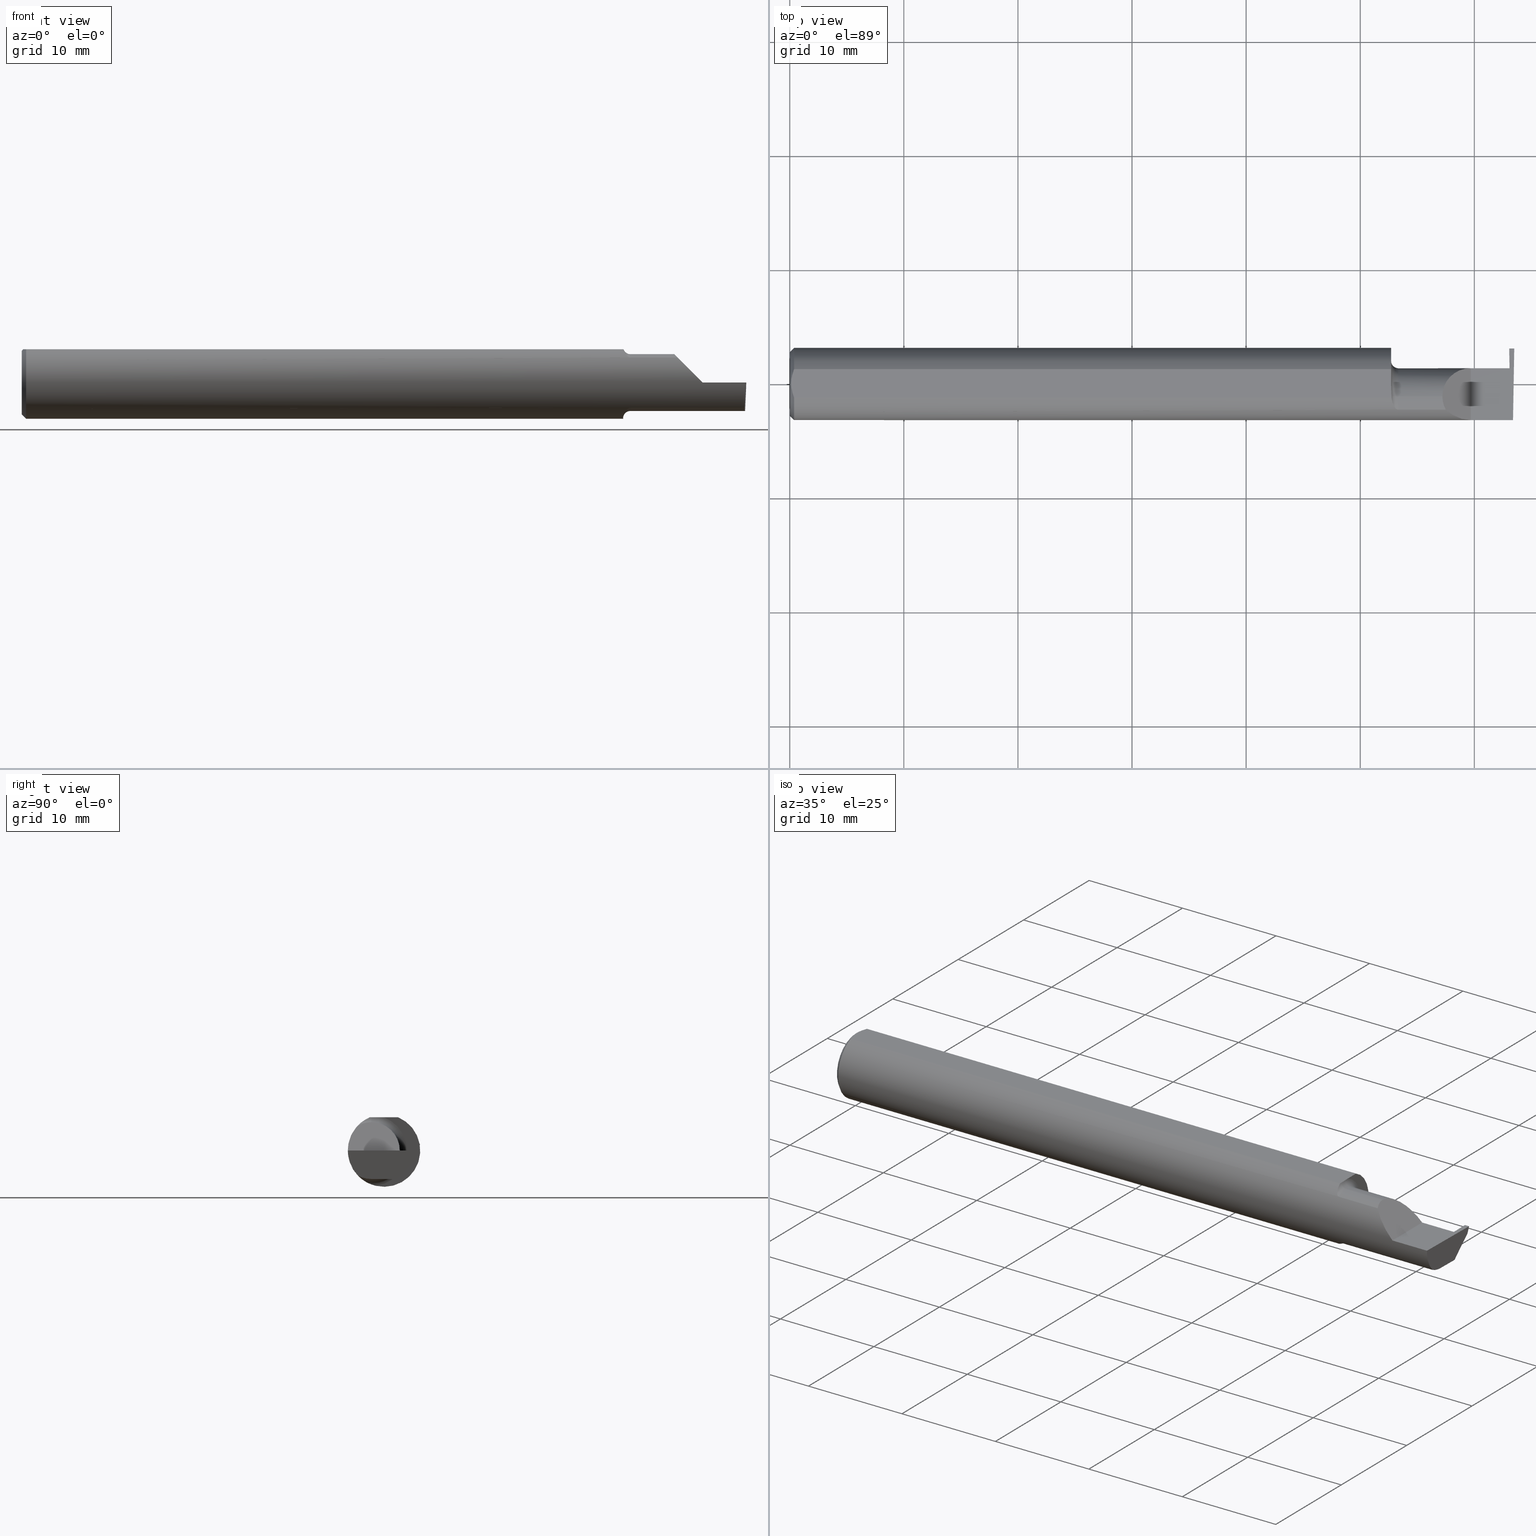
[diagram: canonical four-view strip — front | top / right | iso, engineering-drawing reading convention]
A machine part, canonical four-view strip (front | top / right | iso — engineering-drawing reading convention). The complete STEP part file that produces these views, byte-faithful:
ISO-10303-21;
HEADER;
FILE_DESCRIPTION (( 'STEP AP203' ),
    '1' );
FILE_NAME ('220791-GT017Q-6.STEP',
    '2024-07-08T18:41:14',
    ( '' ),
    ( '' ),
    'SwSTEP 2.0',
    'SolidWorks 2024',
    '' );
FILE_SCHEMA (( 'CONFIG_CONTROL_DESIGN' ));
ENDSEC;

DATA;
#1 = CARTESIAN_POINT ( 'NONE',  ( 2.097502509400849480, -0.09015216647698104380, 0.08637192471808591288 ) ) ;
#2 = DIRECTION ( 'NONE',  ( -1.000000000000000000, -0.000000000000000000, -0.000000000000000000 ) ) ;
#3 = AXIS2_PLACEMENT_3D ( 'NONE', #120, #241, #298 ) ;
#4 = VECTOR ( 'NONE', #729, 39.37007874015748143 ) ;
#5 = DIRECTION ( 'NONE',  ( 0.000000000000000000, 0.000000000000000000, 1.000000000000000000 ) ) ;
#6 = EDGE_CURVE ( 'NONE', #556, #52, #243, .T. ) ;
#7 = ORIENTED_EDGE ( 'NONE', *, *, #367, .F. ) ;
#8 = LINE ( 'NONE', #558, #620 ) ;
#9 = ORIENTED_EDGE ( 'NONE', *, *, #392, .T. ) ;
#10 = PERSON_AND_ORGANIZATION ( #627, #482 ) ;
#11 = PLANE ( 'NONE',  #733 ) ;
#12 = VERTEX_POINT ( 'NONE', #551 ) ;
#13 = AXIS2_PLACEMENT_3D ( 'NONE', #504, #312, #618 ) ;
#14 = AXIS2_PLACEMENT_3D ( 'NONE', #121, #613, #617 ) ;
#15 = ORIENTED_EDGE ( 'NONE', *, *, #367, .T. ) ;
#16 = COORDINATED_UNIVERSAL_TIME_OFFSET ( 8, 0, .BEHIND. ) ;
#17 = CARTESIAN_POINT ( 'NONE',  ( 2.076326891871132840, -0.04895916665958125608, 0.1148500000000000076 ) ) ;
#18 = CARTESIAN_POINT ( 'NONE',  ( 2.350000000000000089, -0.2000000000000000111, 1.836970198721028825E-17 ) ) ;
#19 = EDGE_CURVE ( 'NONE', #581, #321, #493, .T. ) ;
#20 = ORIENTED_EDGE ( 'NONE', *, *, #435, .T. ) ;
#21 = CYLINDRICAL_SURFACE ( 'NONE', #782, 0.09800000000000000377 ) ;
#22 = FACE_OUTER_BOUND ( 'NONE', #217, .T. ) ;
#23 = PRODUCT ( '220791-GT017Q-6', '220791-GT017Q-6', '', ( #265 ) ) ;
#24 = ORIENTED_EDGE ( 'NONE', *, *, #6, .T. ) ;
#25 = EDGE_CURVE ( 'NONE', #49, #350, #430, .T. ) ;
#26 = PERSON_AND_ORGANIZATION ( #627, #482 ) ;
#27 = DIRECTION ( 'NONE',  ( -7.219510806010324627E-16, 0.9999998142845092364, 0.0006094513490878469570 ) ) ;
#28 = DIRECTION ( 'NONE',  ( 0.000000000000000000, 0.000000000000000000, 1.000000000000000000 ) ) ;
#29 = ORIENTED_EDGE ( 'NONE', *, *, #680, .F. ) ;
#30 = CARTESIAN_POINT ( 'NONE',  ( 2.083278800716858115, -0.07573621487658314944, -0.09938639293507189887 ) ) ;
#31 = EDGE_CURVE ( 'NONE', #719, #184, #723, .T. ) ;
#32 = CC_DESIGN_PERSON_AND_ORGANIZATION_ASSIGNMENT ( #451, #82, ( #711 ) ) ;
#33 = ORIENTED_EDGE ( 'NONE', *, *, #268, .T. ) ;
#34 = CARTESIAN_POINT ( 'NONE',  ( 2.075000000000000178, 0.1541499999999999815, 0.000000000000000000 ) ) ;
#35 = CARTESIAN_POINT ( 'NONE',  ( 2.482499999999999929, 0.05414999123725500879, -4.144270477499314721E-05 ) ) ;
#36 = ORIENTED_EDGE ( 'NONE', *, *, #309, .T. ) ;
#37 = CARTESIAN_POINT ( 'NONE',  ( 2.100000000000000089, -0.04385000000000001397, 0.000000000000000000 ) ) ;
#38 = LINE ( 'NONE', #541, #66 ) ;
#39 = ORIENTED_EDGE ( 'NONE', *, *, #786, .T. ) ;
#40 = AXIS2_PLACEMENT_3D ( 'NONE', #653, #302, #771 ) ;
#41 =( BOUNDED_CURVE ( )  B_SPLINE_CURVE ( 3, ( #533, #606, #594, #408 ),
 .UNSPECIFIED., .F., .F. ) 
 B_SPLINE_CURVE_WITH_KNOTS ( ( 4, 4 ),
 ( 0.000000000000000000, 1.570796326794896558 ),
 .UNSPECIFIED. ) 
 CURVE ( )  GEOMETRIC_REPRESENTATION_ITEM ( )  RATIONAL_B_SPLINE_CURVE ( ( 1.000000000000000000, 0.8047378541243649375, 0.8047378541243649375, 1.000000000000000000 ) ) 
 REPRESENTATION_ITEM ( '' )  );
#42 = CARTESIAN_POINT ( 'NONE',  ( 0.004999999999999990563, 1.454187663965904829E-17, 0.1148500000000000076 ) ) ;
#43 = AXIS2_PLACEMENT_3D ( 'NONE', #289, #352, #232 ) ;
#44 = DIRECTION ( 'NONE',  ( 0.000000000000000000, 0.000000000000000000, 1.000000000000000000 ) ) ;
#45 = EDGE_CURVE ( 'NONE', #350, #655, #514, .T. ) ;
#46 = ORIENTED_EDGE ( 'NONE', *, *, #80, .F. ) ;
#47 = CARTESIAN_POINT ( 'NONE',  ( 2.350000000000000089, 0.05414999999999988572, 1.836970198721028825E-17 ) ) ;
#48 = CARTESIAN_POINT ( 'NONE',  ( 2.075000000000000178, 0.000000000000000000, 0.000000000000000000 ) ) ;
#49 = VERTEX_POINT ( 'NONE', #333 ) ;
#50 = DIRECTION ( 'NONE',  ( 0.000000000000000000, 0.000000000000000000, 1.000000000000000000 ) ) ;
#51 = CARTESIAN_POINT ( 'NONE',  ( 2.487354867654527624, 0.002850604310161131225, -0.09799999999999998990 ) ) ;
#52 = VERTEX_POINT ( 'NONE', #35 ) ;
#53 = APPLICATION_PROTOCOL_DEFINITION ( 'international standard', 'config_control_design', 1994, #374 ) ;
#54 = AXIS2_PLACEMENT_3D ( 'NONE', #344, #415, #657 ) ;
#55 = CARTESIAN_POINT ( 'NONE',  ( 2.499132853025171297, 0.1117231085775382687, -0.02616302870350971019 ) ) ;
#56 = CIRCLE ( 'NONE', #273, 0.09800000000000001765 ) ;
#57 = CIRCLE ( 'NONE', #595, 0.1248500000000000026 ) ;
#58 = DIRECTION ( 'NONE',  ( -0.03699114979479237175, 0.7066228325057374304, 0.7066228325057348769 ) ) ;
#59 = CARTESIAN_POINT ( 'NONE',  ( 2.287163018370355072, -0.1127002472623169216, 0.06283698162964553025 ) ) ;
#60 = CARTESIAN_POINT ( 'NONE',  ( 2.076365755776839350, -0.03650543323727818007, 0.1148500000000000215 ) ) ;
#61 = ORIENTED_EDGE ( 'NONE', *, *, #68, .F. ) ;
#62 = CARTESIAN_POINT ( 'NONE',  ( 2.252000000000000668, -0.04385000000000001397, 0.09800000000000000377 ) ) ;
#63 = DIRECTION ( 'NONE',  ( -1.000000000000000000, -0.000000000000000000, -0.000000000000000000 ) ) ;
#64 = CARTESIAN_POINT ( 'NONE',  ( 0.01499999999999999944, 1.528971528735470422E-17, 0.1248500000000000026 ) ) ;
#65 = CARTESIAN_POINT ( 'NONE',  ( 2.399999999999999911, 0.1138861372810479888, -0.02400000000000000050 ) ) ;
#66 = VECTOR ( 'NONE', #768, 39.37007874015748143 ) ;
#67 = VECTOR ( 'NONE', #136, 39.37007874015748143 ) ;
#68 = EDGE_CURVE ( 'NONE', #679, #275, #279, .T. ) ;
#69 = APPROVAL_PERSON_ORGANIZATION ( #26, #428, #326 ) ;
#70 = ORIENTED_EDGE ( 'NONE', *, *, #765, .F. ) ;
#71 = CARTESIAN_POINT ( 'NONE',  ( 2.263628075281542529, -0.09015216647662421812, 0.08637192471845822617 ) ) ;
#72 = DIRECTION ( 'NONE',  ( 1.000000000000000000, 0.000000000000000000, 0.000000000000000000 ) ) ;
#73 = ORIENTED_EDGE ( 'NONE', *, *, #735, .F. ) ;
#74 = CALENDAR_DATE ( 2024, 8, 7 ) ;
#75 = CARTESIAN_POINT ( 'NONE',  ( 0.01499999999999999944, 0.000000000000000000, -0.1248500000000000026 ) ) ;
#76 = ORIENTED_EDGE ( 'NONE', *, *, #751, .F. ) ;
#77 = EDGE_LOOP ( 'NONE', ( #465, #70, #757 ) ) ;
#78 = FACE_OUTER_BOUND ( 'NONE', #176, .T. ) ;
#79 = CIRCLE ( 'NONE', #507, 0.02499999999999980016 ) ;
#80 = EDGE_CURVE ( 'NONE', #574, #687, #361, .T. ) ;
#81 = ORIENTED_EDGE ( 'NONE', *, *, #254, .T. ) ;
#82 = PERSON_AND_ORGANIZATION_ROLE ( 'design_supplier' ) ;
#83 = LINE ( 'NONE', #199, #233 ) ;
#84 = DIRECTION ( 'NONE',  ( -1.000000000000000000, -0.000000000000000000, -0.000000000000000000 ) ) ;
#85 = ADVANCED_FACE ( 'NONE', ( #22 ), #764, .F. ) ;
#86 = EDGE_LOOP ( 'NONE', ( #221, #89, #502, #225, #702 ) ) ;
#87 = DIRECTION ( 'NONE',  ( 1.000000000000000000, 0.000000000000000000, 0.000000000000000000 ) ) ;
#88 = DIRECTION ( 'NONE',  ( -0.7071067811865492381, 0.000000000000000000, -0.7071067811865459074 ) ) ;
#89 = ORIENTED_EDGE ( 'NONE', *, *, #392, .F. ) ;
#90 = ADVANCED_FACE ( 'NONE', ( #445 ), #534, .F. ) ;
#91 = CARTESIAN_POINT ( 'NONE',  ( 2.482499999999999929, 0.05414999123725500879, -4.144270477499314721E-05 ) ) ;
#92 = AXIS2_PLACEMENT_3D ( 'NONE', #210, #324, #389 ) ;
#93 = ORIENTED_EDGE ( 'NONE', *, *, #735, .T. ) ;
#94 = FACE_OUTER_BOUND ( 'NONE', #77, .T. ) ;
#95 = LINE ( 'NONE', #696, #285 ) ;
#96 = ORIENTED_EDGE ( 'NONE', *, *, #168, .T. ) ;
#97 = FACE_OUTER_BOUND ( 'NONE', #567, .T. ) ;
#98 = ORIENTED_EDGE ( 'NONE', *, *, #281, .F. ) ;
#99 = CARTESIAN_POINT ( 'NONE',  ( 2.482499999999999929, 0.05414999999999997593, 5.204738710087130603E-17 ) ) ;
#100 = EDGE_CURVE ( 'NONE', #275, #570, #750, .T. ) ;
#101 = DIRECTION ( 'NONE',  ( -0.03084274406794521375, -0.7067703747110382073, -0.7067703747110356538 ) ) ;
#102 = ORIENTED_EDGE ( 'NONE', *, *, #229, .F. ) ;
#103 = AXIS2_PLACEMENT_3D ( 'NONE', #267, #153, #513 ) ;
#104 = CARTESIAN_POINT ( 'NONE',  ( 0.004999999999999962808, 0.008410227287019804779, 0.1148500000000000076 ) ) ;
#105 = AXIS2_PLACEMENT_3D ( 'NONE', #491, #496, #621 ) ;
#106 = DIRECTION ( 'NONE',  ( -1.000000000000000000, -0.000000000000000000, -0.000000000000000000 ) ) ;
#107 = VERTEX_POINT ( 'NONE', #690 ) ;
#108 = DIRECTION ( 'NONE',  ( -1.000000000000000000, -0.000000000000000000, -0.000000000000000000 ) ) ;
#109 = CARTESIAN_POINT ( 'NONE',  ( 2.497382703856816377, 0.1221956850741156286, -0.09996573249755572044 ) ) ;
#110 = EDGE_LOOP ( 'NONE', ( #716, #747, #317, #743 ) ) ;
#111 = CARTESIAN_POINT ( 'NONE',  ( 2.291250000000000231, -0.09015216647662482874, -0.08637192471845768493 ) ) ;
#112 = ADVANCED_FACE ( 'NONE', ( #78 ), #755, .F. ) ;
#113 = CARTESIAN_POINT ( 'NONE',  ( 2.494536841675280670, -0.04385000000000003478, -0.09799999999999998990 ) ) ;
#114 = ADVANCED_FACE ( 'NONE', ( #272 ), #455, .T. ) ;
#115 = CC_DESIGN_PERSON_AND_ORGANIZATION_ASSIGNMENT ( #193, #331, ( #119 ) ) ;
#116 = ORIENTED_EDGE ( 'NONE', *, *, #80, .T. ) ;
#117 = LINE ( 'NONE', #111, #323 ) ;
#118 = CARTESIAN_POINT ( 'NONE',  ( 2.076365755776839794, -0.04385000000000001397, 0.1148500000000000076 ) ) ;
#119 = SECURITY_CLASSIFICATION ( '', '', #318 ) ;
#120 = CARTESIAN_POINT ( 'NONE',  ( 2.482499999999999929, -0.04385000000000001397, 0.000000000000000000 ) ) ;
#121 = CARTESIAN_POINT ( 'NONE',  ( 2.100000000000000089, -0.04385000000000000009, -0.1230000000000000121 ) ) ;
#122 = DIRECTION ( 'NONE',  ( 0.000000000000000000, -1.000000000000000000, 0.000000000000000000 ) ) ;
#123 =( BOUNDED_CURVE ( )  B_SPLINE_CURVE ( 3, ( #480, #164, #290, #347 ),
 .UNSPECIFIED., .F., .T. ) 
 B_SPLINE_CURVE_WITH_KNOTS ( ( 4, 4 ),
 ( 0.09562308769844128642, 0.5877155292609013149 ),
 .UNSPECIFIED. ) 
 CURVE ( )  GEOMETRIC_REPRESENTATION_ITEM ( )  RATIONAL_B_SPLINE_CURVE ( ( 1.000000000000000000, 0.9799220177372778284, 0.9799220177372778284, 1.000000000000000000 ) ) 
 REPRESENTATION_ITEM ( '' )  );
#124 = ORIENTED_EDGE ( 'NONE', *, *, #141, .T. ) ;
#125 =( CONVERSION_BASED_UNIT ( 'INCH', #674 ) LENGTH_UNIT ( ) NAMED_UNIT ( #548 ) );
#126 = DIRECTION ( 'NONE',  ( -1.000000000000000000, -0.000000000000000000, -0.000000000000000000 ) ) ;
#127 = EDGE_CURVE ( 'NONE', #588, #230, #584, .T. ) ;
#128 = CARTESIAN_POINT ( 'NONE',  ( 2.075000000000000178, -0.1248500000000000165, 0.1148500000000000076 ) ) ;
#129 = DIRECTION ( 'NONE',  ( 1.000000000000000000, -0.000000000000000000, -0.000000000000000000 ) ) ;
#130 = APPROVAL_PERSON_ORGANIZATION ( #447, #462, #510 ) ;
#131 = CC_DESIGN_APPROVAL ( #174, ( #711 ) ) ;
#132 = ORIENTED_EDGE ( 'NONE', *, *, #293, .F. ) ;
#133 = LINE ( 'NONE', #240, #706 ) ;
#134 = ORIENTED_EDGE ( 'NONE', *, *, #414, .T. ) ;
#135 = APPROVAL_STATUS ( 'not_yet_approved' ) ;
#136 = DIRECTION ( 'NONE',  ( 1.000000000000000000, 0.000000000000000000, 0.000000000000000000 ) ) ;
#137 = PRODUCT_RELATED_PRODUCT_CATEGORY ( 'detail', '', ( #23 ) ) ;
#138 = ORIENTED_EDGE ( 'NONE', *, *, #488, .F. ) ;
#139 = APPROVAL_ROLE ( '' ) ;
#140 = CARTESIAN_POINT ( 'NONE',  ( 0.01499999999999999944, 0.000000000000000000, 0.000000000000000000 ) ) ;
#141 = EDGE_CURVE ( 'NONE', #158, #49, #95, .T. ) ;
#142 = CARTESIAN_POINT ( 'NONE',  ( 2.494033449660867152, -0.09015216647662482874, -0.08637192471845768493 ) ) ;
#143 = VECTOR ( 'NONE', #101, 39.37007874015748854 ) ;
#144 = LOCAL_TIME ( 11, 41, 14.00000000000000000, #516 ) ;
#145 = ORIENTED_EDGE ( 'NONE', *, *, #694, .F. ) ;
#146 = CARTESIAN_POINT ( 'NONE',  ( 2.252000000000000668, -0.04385000000000001397, 0.09800000000000000377 ) ) ;
#147 = DIRECTION ( 'NONE',  ( -0.01744642479411464067, -0.9998477995484629233, 2.816882764651548232E-16 ) ) ;
#148 = EDGE_CURVE ( 'NONE', #303, #52, #441, .T. ) ;
#149 = ORIENTED_EDGE ( 'NONE', *, *, #751, .T. ) ;
#150 =( BOUNDED_CURVE ( )  B_SPLINE_CURVE ( 3, ( #499, #426, #666, #62 ),
 .UNSPECIFIED., .F., .T. ) 
 B_SPLINE_CURVE_WITH_KNOTS ( ( 4, 4 ),
 ( 5.791092865617133434, 6.283185307179586232 ),
 .UNSPECIFIED. ) 
 CURVE ( )  GEOMETRIC_REPRESENTATION_ITEM ( )  RATIONAL_B_SPLINE_CURVE ( ( 1.000000000000000000, 0.9799220177372784946, 0.9799220177372784946, 1.000000000000000000 ) ) 
 REPRESENTATION_ITEM ( '' )  );
#151 = COORDINATED_UNIVERSAL_TIME_OFFSET ( 8, 0, .BEHIND. ) ;
#152 = CARTESIAN_POINT ( 'NONE',  ( 2.483482208140547431, -2.430858181986507827, -0.02555089814648706797 ) ) ;
#153 = DIRECTION ( 'NONE',  ( -1.000000000000000000, -0.000000000000000000, -0.000000000000000000 ) ) ;
#154 = EDGE_LOOP ( 'NONE', ( #509, #697, #450, #342 ) ) ;
#155 = CARTESIAN_POINT ( 'NONE',  ( 2.500000000000000000, 0.03988613728104772188, -0.09800000000000000377 ) ) ;
#156 = CARTESIAN_POINT ( 'NONE',  ( 2.080064983703085346, -0.06736177101644118259, -0.1052426774175050095 ) ) ;
#157 = VECTOR ( 'NONE', #614, 39.37007874015748143 ) ;
#158 = VERTEX_POINT ( 'NONE', #336 ) ;
#159 = VECTOR ( 'NONE', #27, 39.37007874015748854 ) ;
#160 = CARTESIAN_POINT ( 'NONE',  ( 0.009415874254822407391, -0.03313958207962815206, 0.1148500000000000076 ) ) ;
#161 = FACE_OUTER_BOUND ( 'NONE', #478, .T. ) ;
#162 = ORIENTED_EDGE ( 'NONE', *, *, #401, .T. ) ;
#163 = CARTESIAN_POINT ( 'NONE',  ( 0.004999999999999964542, -0.008410771716546819321, 0.1148500000000000215 ) ) ;
#164 = CARTESIAN_POINT ( 'NONE',  ( 2.494082244196984099, -0.07583965973232818791, -0.09404455760388209795 ) ) ;
#165 = ORIENTED_EDGE ( 'NONE', *, *, #148, .F. ) ;
#166 = CARTESIAN_POINT ( 'NONE',  ( 0.004999999999999990563, 1.454187663965904829E-17, 0.1148500000000000076 ) ) ;
#167 = PLANE ( 'NONE',  #40 ) ;
#168 = EDGE_CURVE ( 'NONE', #158, #581, #276, .T. ) ;
#169 = ORIENTED_EDGE ( 'NONE', *, *, #626, .F. ) ;
#170 = CIRCLE ( 'NONE', #183, 0.1098500000000000032 ) ;
#171 = CARTESIAN_POINT ( 'NONE',  ( 2.483367975664828364, 0.1160682612756623600, -0.02181787600538563632 ) ) ;
#172 = ADVANCED_FACE ( 'NONE', ( #340 ), #167, .F. ) ;
#173 = DIRECTION ( 'NONE',  ( -0.03699114979479620202, 0.7066228325057373194, 0.7066228325057347659 ) ) ;
#174 = APPROVAL ( #135, 'UNSPECIFIED' ) ;
#175 = CARTESIAN_POINT ( 'NONE',  ( 2.100000000000000089, -0.04385000000000001397, 0.000000000000000000 ) ) ;
#176 = EDGE_LOOP ( 'NONE', ( #61, #179, #712, #362, #691, #633, #429 ) ) ;
#177 = CARTESIAN_POINT ( 'NONE',  ( 0.000000000000000000, 0.000000000000000000, -0.1098500000000000032 ) ) ;
#178 = DESIGN_CONTEXT ( 'detailed design', #249, 'design' ) ;
#179 = ORIENTED_EDGE ( 'NONE', *, *, #680, .T. ) ;
#180 = CARTESIAN_POINT ( 'NONE',  ( 2.079335346929732431, -0.06618116991733512255, 0.1062694618618284514 ) ) ;
#181 = AXIS2_PLACEMENT_3D ( 'NONE', #518, #84, #28 ) ;
#182 = CARTESIAN_POINT ( 'NONE',  ( 2.487356049968028060, 0.05420972092307638907, -0.09799127047100440746 ) ) ;
#183 = AXIS2_PLACEMENT_3D ( 'NONE', #252, #126, #784 ) ;
#184 = VERTEX_POINT ( 'NONE', #113 ) ;
#185 = CARTESIAN_POINT ( 'NONE',  ( 2.486606678051653585, 0.05420100202804830486, -0.08368513525299321743 ) ) ;
#186 = CARTESIAN_POINT ( 'NONE',  ( 2.076365755776839794, -0.04385000000000001397, 0.1148500000000000076 ) ) ;
#187 =( NAMED_UNIT ( * ) PLANE_ANGLE_UNIT ( ) SI_UNIT ( $, .RADIAN. ) );
#188 = CARTESIAN_POINT ( 'NONE',  ( 0.000000000000000000, 0.000000000000000000, 0.000000000000000000 ) ) ;
#189 = AXIS2_PLACEMENT_3D ( 'NONE', #686, #88, #573 ) ;
#190 = VECTOR ( 'NONE', #749, 39.37007874015748143 ) ;
#191 = LOCAL_TIME ( 11, 41, 14.00000000000000000, #151 ) ;
#192 = VERTEX_POINT ( 'NONE', #424 ) ;
#193 = PERSON_AND_ORGANIZATION ( #627, #482 ) ;
#194 = EDGE_CURVE ( 'NONE', #211, #412, #619, .T. ) ;
#195 = LINE ( 'NONE', #444, #67 ) ;
#196 = CARTESIAN_POINT ( 'NONE',  ( 2.494256244271084721, -0.1126860773865890480, -0.06285177167860772629 ) ) ;
#197 = VERTEX_POINT ( 'NONE', #220 ) ;
#198 = DATE_TIME_ROLE ( 'classification_date' ) ;
#199 = CARTESIAN_POINT ( 'NONE',  ( 2.499999999999999556, 0.05415000000000005920, 4.902705984595532466E-32 ) ) ;
#200 = CARTESIAN_POINT ( 'NONE',  ( 2.085226514481665738, -0.07966992494485841680, -0.09623747760188226807 ) ) ;
#201 = B_SPLINE_CURVE_WITH_KNOTS ( 'NONE', 3,
 ( #118, #60, #434, #370, #563, #741 ),
 .UNSPECIFIED., .F., .F.,
 ( 4, 2, 4 ),
 ( 0.009485158816280108221, 0.01004274199597733272, 0.01060032517567455548 ),
 .UNSPECIFIED. ) ;
#202 = VERTEX_POINT ( 'NONE', #360 ) ;
#203 = PLANE ( 'NONE',  #495 ) ;
#204 = CARTESIAN_POINT ( 'NONE',  ( 2.494835769263151537, -0.1248351010429638308, -0.03262966116142157480 ) ) ;
#205 = AXIS2_PLACEMENT_3D ( 'NONE', #109, #598, #778 ) ;
#206 = ORIENTED_EDGE ( 'NONE', *, *, #45, .T. ) ;
#207 = DIRECTION ( 'NONE',  ( 1.000000000000000000, 0.000000000000000000, 0.000000000000000000 ) ) ;
#208 = EDGE_CURVE ( 'NONE', #412, #260, #756, .T. ) ;
#209 = CARTESIAN_POINT ( 'NONE',  ( 2.263628075281542529, -0.09015216647662421812, 0.08637192471845822617 ) ) ;
#210 = CARTESIAN_POINT ( 'NONE',  ( 2.500000000000000000, -0.2000000000000000111, 0.000000000000000000 ) ) ;
#211 = VERTEX_POINT ( 'NONE', #715 ) ;
#212 = FACE_OUTER_BOUND ( 'NONE', #383, .T. ) ;
#213 = DIRECTION ( 'NONE',  ( 3.192376091676806335E-05, 0.9999999994904366085, -2.817425088418965867E-16 ) ) ;
#214 = ORIENTED_EDGE ( 'NONE', *, *, #481, .T. ) ;
#215 = CARTESIAN_POINT ( 'NONE',  ( 2.495690077103728921, -0.1248499999950965084, 1.733801157256528502E-17 ) ) ;
#216 = FACE_OUTER_BOUND ( 'NONE', #422, .T. ) ;
#217 = EDGE_LOOP ( 'NONE', ( #73, #313, #539, #766 ) ) ;
#218 = LINE ( 'NONE', #720, #364 ) ;
#219 = CC_DESIGN_APPROVAL ( #428, ( #119 ) ) ;
#220 = CARTESIAN_POINT ( 'NONE',  ( 2.483684773821554170, 0.05415000000000000369, 1.807306943624157614E-17 ) ) ;
#221 = ORIENTED_EDGE ( 'NONE', *, *, #786, .F. ) ;
#222 = CARTESIAN_POINT ( 'NONE',  ( 2.076362484150211962, -0.04555293709217373560, 0.1148500000000000076 ) ) ;
#223 = EDGE_CURVE ( 'NONE', #230, #334, #38, .T. ) ;
#224 = PLANE ( 'NONE',  #205 ) ;
#225 = ORIENTED_EDGE ( 'NONE', *, *, #229, .T. ) ;
#226 = CARTESIAN_POINT ( 'NONE',  ( 0.01499999999999999944, -0.04895916665957456698, 0.1148500000000000076 ) ) ;
#227 = DIRECTION ( 'NONE',  ( -1.000000000000000000, -0.000000000000000000, -0.000000000000000000 ) ) ;
#228 =( BOUNDED_CURVE ( )  B_SPLINE_CURVE ( 3, ( #677, #610, #59, #71 ),
 .UNSPECIFIED., .F., .F. ) 
 B_SPLINE_CURVE_WITH_KNOTS ( ( 4, 4 ),
 ( 4.712388980384690562, 5.476375539154175520 ),
 .UNSPECIFIED. ) 
 CURVE ( )  GEOMETRIC_REPRESENTATION_ITEM ( )  RATIONAL_B_SPLINE_CURVE ( ( 1.000000000000000000, 0.9519489620492029847, 0.9519489620492029847, 1.000000000000000000 ) ) 
 REPRESENTATION_ITEM ( '' )  );
#229 = EDGE_CURVE ( 'NONE', #192, #380, #494, .T. ) ;
#230 = VERTEX_POINT ( 'NONE', #664 ) ;
#231 = VECTOR ( 'NONE', #147, 39.37007874015748854 ) ;
#232 = DIRECTION ( 'NONE',  ( 0.000000000000000000, -0.7071067811865487940, -0.7071067811865462405 ) ) ;
#233 = VECTOR ( 'NONE', #387, 39.37007874015748143 ) ;
#234 = DIRECTION ( 'NONE',  ( 0.000000000000000000, 0.000000000000000000, 1.000000000000000000 ) ) ;
#235 = ORIENTED_EDGE ( 'NONE', *, *, #616, .T. ) ;
#236 = CARTESIAN_POINT ( 'NONE',  ( 2.100000000000000089, -0.04385000000000001397, 0.000000000000000000 ) ) ;
#237 = CARTESIAN_POINT ( 'NONE',  ( 2.100000000000000089, -0.04385000000000001397, 0.000000000000000000 ) ) ;
#238 = CARTESIAN_POINT ( 'NONE',  ( 2.091486677516483983, -0.08696861555848746372, 0.08959154238187769237 ) ) ;
#239 = B_SPLINE_CURVE_WITH_KNOTS ( 'NONE', 3,
 ( #381, #630, #512, #777 ),
 .UNSPECIFIED., .F., .F.,
 ( 4, 4 ),
 ( 0.001640801893433561616, 0.002088276671954475590 ),
 .UNSPECIFIED. ) ;
#240 = CARTESIAN_POINT ( 'NONE',  ( 2.500000000000000000, -0.04385000000000002091, -0.09799999999999998990 ) ) ;
#241 = DIRECTION ( 'NONE',  ( -1.000000000000000000, -0.000000000000000000, -0.000000000000000000 ) ) ;
#242 = CARTESIAN_POINT ( 'NONE',  ( 2.499227245409318954, 0.1138861372810479888, -0.02400000000000000050 ) ) ;
#243 = CIRCLE ( 'NONE', #3, 0.09799999999999998990 ) ;
#244 = DIRECTION ( 'NONE',  ( 1.000000000000000000, 0.000000000000000000, 0.000000000000000000 ) ) ;
#245 = AXIS2_PLACEMENT_3D ( 'NONE', #34, #278, #767 ) ;
#246 = ADVANCED_FACE ( 'NONE', ( #216 ), #224, .F. ) ;
#247 = ADVANCED_FACE ( 'NONE', ( #161 ), #485, .T. ) ;
#248 = CARTESIAN_POINT ( 'NONE',  ( 2.100000000000000089, -0.09015216647662478711, -0.08637192471845772657 ) ) ;
#249 = APPLICATION_CONTEXT ( 'configuration controlled 3d designs of mechanical parts and assemblies' ) ;
#250 = ORIENTED_EDGE ( 'NONE', *, *, #45, .F. ) ;
#251 = FACE_OUTER_BOUND ( 'NONE', #705, .T. ) ;
#252 = CARTESIAN_POINT ( 'NONE',  ( 0.000000000000000000, 0.000000000000000000, 0.000000000000000000 ) ) ;
#253 = EDGE_CURVE ( 'NONE', #425, #570, #41, .T. ) ;
#254 = EDGE_CURVE ( 'NONE', #288, #202, #56, .T. ) ;
#255 = EDGE_LOOP ( 'NONE', ( #36, #663, #358, #258, #628 ) ) ;
#256 = AXIS2_PLACEMENT_3D ( 'NONE', #236, #672, #373 ) ;
#257 = TOROIDAL_SURFACE ( 'NONE', #301, 0.1230000000000000121, 0.02499999999999979669 ) ;
#258 = ORIENTED_EDGE ( 'NONE', *, *, #19, .F. ) ;
#259 = LOCAL_TIME ( 11, 41, 14.00000000000000000, #16 ) ;
#260 = VERTEX_POINT ( 'NONE', #718 ) ;
#261 = PERSON_AND_ORGANIZATION ( #627, #482 ) ;
#262 = CARTESIAN_POINT ( 'NONE',  ( 2.483482208140546099, 0.05416464901750961403, -0.02403639734835131062 ) ) ;
#263 = CARTESIAN_POINT ( 'NONE',  ( 2.078850144156349611, -0.06295012366509140922, -0.1079450122012245994 ) ) ;
#264 = ORIENTED_EDGE ( 'NONE', *, *, #694, .T. ) ;
#265 = MECHANICAL_CONTEXT ( 'NONE', #374, 'mechanical' ) ;
#266 = DIRECTION ( 'NONE',  ( -1.000000000000000000, -0.000000000000000000, -0.000000000000000000 ) ) ;
#267 = CARTESIAN_POINT ( 'NONE',  ( 0.000000000000000000, 0.000000000000000000, 0.000000000000000000 ) ) ;
#268 = EDGE_CURVE ( 'NONE', #785, #719, #477, .T. ) ;
#269 = ORIENTED_EDGE ( 'NONE', *, *, #393, .F. ) ;
#270 = PERSON_AND_ORGANIZATION ( #627, #482 ) ;
#271 = DIRECTION ( 'NONE',  ( 0.000000000000000000, -1.000000000000000000, 2.817424862263051475E-16 ) ) ;
#272 = FACE_OUTER_BOUND ( 'NONE', #682, .T. ) ;
#273 = AXIS2_PLACEMENT_3D ( 'NONE', #175, #590, #44 ) ;
#274 = CONICAL_SURFACE ( 'NONE', #349, 0.1248500000000000026, 0.7853981633974480570 ) ;
#275 = VERTEX_POINT ( 'NONE', #649 ) ;
#276 = LINE ( 'NONE', #527, #732 ) ;
#277 = EDGE_LOOP ( 'NONE', ( #508, #640, #149, #81 ) ) ;
#278 = DIRECTION ( 'NONE',  ( 1.000000000000000000, 0.000000000000000000, 0.000000000000000000 ) ) ;
#279 = LINE ( 'NONE', #530, #438 ) ;
#280 = ORIENTED_EDGE ( 'NONE', *, *, #453, .F. ) ;
#281 = EDGE_CURVE ( 'NONE', #574, #184, #123, .T. ) ;
#282 = CC_DESIGN_PERSON_AND_ORGANIZATION_ASSIGNMENT ( #270, #748, ( #544 ) ) ;
#283 = DIRECTION ( 'NONE',  ( -1.000000000000000000, -0.000000000000000000, -0.000000000000000000 ) ) ;
#284 = CARTESIAN_POINT ( 'NONE',  ( 2.100000000000000089, -0.04385000000000001397, 0.000000000000000000 ) ) ;
#285 = VECTOR ( 'NONE', #523, 39.37007874015748143 ) ;
#286 = ADVANCED_FACE ( 'NONE', ( #357 ), #721, .F. ) ;
#287 = CONICAL_SURFACE ( 'NONE', #645, 0.1248500000000000026, 0.7853981633974480570 ) ;
#288 = VERTEX_POINT ( 'NONE', #294 ) ;
#289 = CARTESIAN_POINT ( 'NONE',  ( 2.399999999999999911, 0.1138861372810479888, -0.02400000000000000050 ) ) ;
#290 = CARTESIAN_POINT ( 'NONE',  ( 2.494253479596434175, -0.06008937020638530080, -0.09800000000000001765 ) ) ;
#291 = EDGE_LOOP ( 'NONE', ( #306, #546, #461, #280, #169 ) ) ;
#292 = CARTESIAN_POINT ( 'NONE',  ( 2.483367975664828364, 0.1160682612756625820, -0.02181787600538541080 ) ) ;
#293 = EDGE_CURVE ( 'NONE', #202, #49, #742, .T. ) ;
#294 = CARTESIAN_POINT ( 'NONE',  ( 2.100000000000000089, -0.09015216647662482874, 0.08637192471845769881 ) ) ;
#295 = ORIENTED_EDGE ( 'NONE', *, *, #435, .F. ) ;
#296 = CARTESIAN_POINT ( 'NONE',  ( 2.076365755776839794, -0.04470142088177658790, 0.1148500000000000076 ) ) ;
#297 = DIRECTION ( 'NONE',  ( -1.000000000000000000, -0.000000000000000000, -0.000000000000000000 ) ) ;
#298 = DIRECTION ( 'NONE',  ( 0.000000000000000000, 0.000000000000000000, 1.000000000000000000 ) ) ;
#299 = AXIS2_PLACEMENT_3D ( 'NONE', #472, #297, #234 ) ;
#300 = DIRECTION ( 'NONE',  ( 0.7071067811865476838, 8.659560562354930393E-17, 0.7071067811865473507 ) ) ;
#301 = AXIS2_PLACEMENT_3D ( 'NONE', #37, #108, #714 ) ;
#302 = DIRECTION ( 'NONE',  ( 1.575122098794466572E-15, -0.9999998142845093474, -0.0006094513490878165993 ) ) ;
#303 = VERTEX_POINT ( 'NONE', #545 ) ;
#304 = CARTESIAN_POINT ( 'NONE',  ( 2.076326891871132840, -0.04895916665958125608, 0.1148500000000000076 ) ) ;
#305 = PLANE ( 'NONE',  #417 ) ;
#306 = ORIENTED_EDGE ( 'NONE', *, *, #316, .F. ) ;
#307 = PLANE ( 'NONE',  #105 ) ;
#308 = LINE ( 'NONE', #182, #157 ) ;
#309 = EDGE_CURVE ( 'NONE', #158, #303, #776, .T. ) ;
#310 = EDGE_CURVE ( 'NONE', #588, #785, #602, .T. ) ;
#311 = AXIS2_PLACEMENT_3D ( 'NONE', #467, #781, #709 ) ;
#312 = DIRECTION ( 'NONE',  ( 0.000000000000000000, -0.000000000000000000, 1.000000000000000000 ) ) ;
#313 = ORIENTED_EDGE ( 'NONE', *, *, #789, .F. ) ;
#314 = DIRECTION ( 'NONE',  ( 0.01744642479411464761, 0.9998477995484629233, -2.135106780035675284E-18 ) ) ;
#315 = FACE_OUTER_BOUND ( 'NONE', #569, .T. ) ;
#316 = EDGE_CURVE ( 'NONE', #12, #321, #308, .T. ) ;
#317 = ORIENTED_EDGE ( 'NONE', *, *, #310, .F. ) ;
#318 = SECURITY_CLASSIFICATION_LEVEL ( 'unclassified' ) ;
#319 = DIRECTION ( 'NONE',  ( -0.000000000000000000, 2.817424862263051475E-16, 1.000000000000000000 ) ) ;
#320 = VERTEX_POINT ( 'NONE', #177 ) ;
#321 = VERTEX_POINT ( 'NONE', #185 ) ;
#322 = APPLICATION_PROTOCOL_DEFINITION ( 'international standard', 'config_control_design', 1994, #249 ) ;
#323 = VECTOR ( 'NONE', #557, 39.37007874015748143 ) ;
#324 = DIRECTION ( 'NONE',  ( -1.224646799147352221E-16, 0.000000000000000000, -1.000000000000000000 ) ) ;
#325 = ORIENTED_EDGE ( 'NONE', *, *, #559, .T. ) ;
#326 = APPROVAL_ROLE ( '' ) ;
#327 = LINE ( 'NONE', #582, #190 ) ;
#328 = CARTESIAN_POINT ( 'NONE',  ( 2.076227715916085348, -0.04883822427082835926, -0.1150249279297937549 ) ) ;
#329 = ADVANCED_FACE ( 'NONE', ( #315 ), #607, .F. ) ;
#330 = EDGE_CURVE ( 'NONE', #184, #158, #133, .T. ) ;
#331 = PERSON_AND_ORGANIZATION_ROLE ( 'classification_officer' ) ;
#332 = LINE ( 'NONE', #155, #535 ) ;
#333 = CARTESIAN_POINT ( 'NONE',  ( 2.100000000000000089, -0.04385000000000000009, -0.09800000000000001765 ) ) ;
#334 = VERTEX_POINT ( 'NONE', #787 ) ;
#335 = DATE_TIME_ROLE ( 'creation_date' ) ;
#336 = CARTESIAN_POINT ( 'NONE',  ( 2.487353376795599758, -0.04385000000000004172, -0.09799999999999998990 ) ) ;
#337 = CC_DESIGN_APPROVAL ( #462, ( #544 ) ) ;
#338 = ORIENTED_EDGE ( 'NONE', *, *, #650, .F. ) ;
#339 = CARTESIAN_POINT ( 'NONE',  ( 0.009410502401328750890, 0.03310661131402438395, 0.1148499999999999938 ) ) ;
#340 = FACE_OUTER_BOUND ( 'NONE', #291, .T. ) ;
#341 = EDGE_CURVE ( 'NONE', #320, #192, #377, .T. ) ;
#342 = ORIENTED_EDGE ( 'NONE', *, *, #660, .F. ) ;
#343 = CARTESIAN_POINT ( 'NONE',  ( 2.399999999999999911, 0.1221499999999999808, -3.306546357697866753E-19 ) ) ;
#344 = CARTESIAN_POINT ( 'NONE',  ( 2.487356049968029836, -2.430813110080940920, -0.09950577126914016135 ) ) ;
#345 = ORIENTED_EDGE ( 'NONE', *, *, #68, .T. ) ;
#346 = CARTESIAN_POINT ( 'NONE',  ( 2.076365755776839794, -0.04385000000000001397, 0.1148500000000000076 ) ) ;
#347 = CARTESIAN_POINT ( 'NONE',  ( 2.494536841675280670, -0.04385000000000003478, -0.09799999999999998990 ) ) ;
#348 = VECTOR ( 'NONE', #58, 39.37007874015748143 ) ;
#349 = AXIS2_PLACEMENT_3D ( 'NONE', #497, #730, #555 ) ;
#350 = VERTEX_POINT ( 'NONE', #248 ) ;
#351 = LOCAL_TIME ( 11, 41, 14.00000000000000000, #520 ) ;
#352 = DIRECTION ( 'NONE',  ( 0.000000000000000000, -0.7071067811865462405, 0.7071067811865487940 ) ) ;
#353 = DIRECTION ( 'NONE',  ( 0.000000000000000000, 0.000000000000000000, 1.000000000000000000 ) ) ;
#354 = ADVANCED_FACE ( 'NONE', ( #379 ), #427, .T. ) ;
#355 = ORIENTED_EDGE ( 'NONE', *, *, #31, .T. ) ;
#356 = CYLINDRICAL_SURFACE ( 'NONE', #522, 0.09800000000000000377 ) ;
#357 = FACE_OUTER_BOUND ( 'NONE', #255, .T. ) ;
#358 = ORIENTED_EDGE ( 'NONE', *, *, #316, .T. ) ;
#359 = CARTESIAN_POINT ( 'NONE',  ( 2.494380489674781209, -0.1999019447116721915, 6.881915332554903690E-19 ) ) ;
#360 = CARTESIAN_POINT ( 'NONE',  ( 2.100000000000000089, -0.04385000000000001397, 0.09800000000000001765 ) ) ;
#361 =( BOUNDED_CURVE ( )  B_SPLINE_CURVE ( 3, ( #142, #196, #204, #762 ),
 .UNSPECIFIED., .F., .T. ) 
 B_SPLINE_CURVE_WITH_KNOTS ( ( 4, 4 ),
 ( 0.2190942387645155864, 0.9826237902196512941 ),
 .UNSPECIFIED. ) 
 CURVE ( )  GEOMETRIC_REPRESENTATION_ITEM ( )  RATIONAL_B_SPLINE_CURVE ( ( 1.000000000000000000, 0.9520057322288819623, 0.9520057322288819623, 1.000000000000000000 ) ) 
 REPRESENTATION_ITEM ( '' )  );
#362 = ORIENTED_EDGE ( 'NONE', *, *, #660, .T. ) ;
#363 = VECTOR ( 'NONE', #492, 39.37007874015748143 ) ;
#364 = VECTOR ( 'NONE', #420, 39.37007874015748854 ) ;
#365 = LINE ( 'NONE', #128, #4 ) ;
#366 = FACE_OUTER_BOUND ( 'NONE', #659, .T. ) ;
#367 = EDGE_CURVE ( 'NONE', #425, #202, #611, .T. ) ;
#368 = VERTEX_POINT ( 'NONE', #667 ) ;
#369 = CARTESIAN_POINT ( 'NONE',  ( 2.077489051389917130, -0.05793447593726073347, 0.1110239341510882716 ) ) ;
#370 = CARTESIAN_POINT ( 'NONE',  ( 2.075400391910593445, -0.01449986171080060865, 0.1148500000000000076 ) ) ;
#371 = EDGE_CURVE ( 'NONE', #409, #211, #201, .T. ) ;
#372 = ORIENTED_EDGE ( 'NONE', *, *, #371, .F. ) ;
#373 = DIRECTION ( 'NONE',  ( 0.000000000000000000, 0.000000000000000000, 1.000000000000000000 ) ) ;
#374 = APPLICATION_CONTEXT ( 'configuration controlled 3d designs of mechanical parts and assemblies' ) ;
#375 = EDGE_CURVE ( 'NONE', #288, #519, #8, .T. ) ;
#376 = AXIS2_PLACEMENT_3D ( 'NONE', #237, #734, #483 ) ;
#377 = LINE ( 'NONE', #75, #363 ) ;
#378 = CIRCLE ( 'NONE', #14, 0.02499999999999980016 ) ;
#379 = FACE_OUTER_BOUND ( 'NONE', #651, .T. ) ;
#380 = VERTEX_POINT ( 'NONE', #552 ) ;
#381 = CARTESIAN_POINT ( 'NONE',  ( 2.075756598855984514, -0.04385000000000000009, -0.1168961077196328247 ) ) ;
#382 = CARTESIAN_POINT ( 'NONE',  ( 2.496652745773396020, 0.07741163850316090667, -0.09800000000000001765 ) ) ;
#383 = EDGE_LOOP ( 'NONE', ( #269, #39, #788, #515, #473 ) ) ;
#384 = B_SPLINE_CURVE_WITH_KNOTS ( 'NONE', 3,
 ( #652, #413, #532, #222, #296, #346 ),
 .UNSPECIFIED., .F., .F.,
 ( 4, 2, 4 ),
 ( 0.009355882855462056488, 0.009420520835871082355, 0.009485158816280108221 ),
 .UNSPECIFIED. ) ;
#385 = APPROVAL_DATE_TIME ( #624, #174 ) ;
#386 = ADVANCED_FACE ( 'NONE', ( #366 ), #305, .F. ) ;
#387 = DIRECTION ( 'NONE',  ( -1.000000000000000000, -1.575197027597345022E-15, 1.224646799147352221E-16 ) ) ;
#388 = VECTOR ( 'NONE', #577, 39.37007874015748143 ) ;
#389 = DIRECTION ( 'NONE',  ( -1.000000000000000000, 0.000000000000000000, 1.224646799147352221E-16 ) ) ;
#390 = COORDINATED_UNIVERSAL_TIME_OFFSET ( 8, 0, .BEHIND. ) ;
#391 = CARTESIAN_POINT ( 'NONE',  ( 2.483160734290017047, 0.05314349951121604548, -0.01618353831829645942 ) ) ;
#392 = EDGE_CURVE ( 'NONE', #320, #107, #170, .T. ) ;
#393 = EDGE_CURVE ( 'NONE', #107, #320, #759, .T. ) ;
#394 = ORIENTED_EDGE ( 'NONE', *, *, #330, .F. ) ;
#395 = CALENDAR_DATE ( 2024, 8, 7 ) ;
#396 = FACE_OUTER_BOUND ( 'NONE', #398, .T. ) ;
#397 = CARTESIAN_POINT ( 'NONE',  ( 2.483482208140546099, 0.05115612325138135796, -0.02403823089877876393 ) ) ;
#398 = EDGE_LOOP ( 'NONE', ( #490, #355, #578, #96 ) ) ;
#399 = ADVANCED_FACE ( 'NONE', ( #501 ), #274, .T. ) ;
#400 = DIRECTION ( 'NONE',  ( 1.000000000000000000, 0.000000000000000000, 0.000000000000000000 ) ) ;
#401 = EDGE_CURVE ( 'NONE', #260, #368, #432, .T. ) ;
#402 = CARTESIAN_POINT ( 'NONE',  ( 2.094784064659362510, -0.08911389870154513837, -0.08746251087962812754 ) ) ;
#403 = AXIS2_PLACEMENT_3D ( 'NONE', #48, #549, #411 ) ;
#404 = VECTOR ( 'NONE', #593, 39.37007874015748854 ) ;
#405 = ORIENTED_EDGE ( 'NONE', *, *, #401, .F. ) ;
#406 = UNCERTAINTY_MEASURE_WITH_UNIT (LENGTH_MEASURE( 1.000000000000000082E-05 ), #125, 'distance_accuracy_value', 'NONE');
#407 = CARTESIAN_POINT ( 'NONE',  ( 0.005947935873631229539, 0.01679708999422689641, 0.1148500000000000076 ) ) ;
#408 = CARTESIAN_POINT ( 'NONE',  ( 2.350000000000000089, 0.05414999999999988572, 1.836970198721028825E-17 ) ) ;
#409 = VERTEX_POINT ( 'NONE', #186 ) ;
#410 = CARTESIAN_POINT ( 'NONE',  ( 0.005932194444709715242, -0.01671525318617308672, 0.1148499999999999938 ) ) ;
#411 = DIRECTION ( 'NONE',  ( 0.000000000000000000, 0.000000000000000000, -1.000000000000000000 ) ) ;
#412 = VERTEX_POINT ( 'NONE', #681 ) ;
#413 = CARTESIAN_POINT ( 'NONE',  ( 2.076339737573306810, -0.04810771292240874353, 0.1148500000000000215 ) ) ;
#414 = EDGE_CURVE ( 'NONE', #409, #202, #79, .T. ) ;
#415 = DIRECTION ( 'NONE',  ( 0.9986309243930283630, -3.188005489064428923E-05, 0.05230942390801072289 ) ) ;
#416 = AXIS2_PLACEMENT_3D ( 'NONE', #284, #106, #353 ) ;
#417 = AXIS2_PLACEMENT_3D ( 'NONE', #727, #72, #675 ) ;
#418 = ORIENTED_EDGE ( 'NONE', *, *, #141, .F. ) ;
#419 = B_SPLINE_CURVE_WITH_KNOTS ( 'NONE', 3,
 ( #304, #369, #180, #554, #737, #503, #238, #436, #1, #565 ),
 .UNSPECIFIED., .F., .F.,
 ( 4, 2, 2, 2, 4 ),
 ( 5.065792501956622349E-07, 0.0007388407002080830781, 0.001108007760687027519, 0.001292591290926493669, 0.001477174821165960035 ),
 .UNSPECIFIED. ) ;
#420 = DIRECTION ( 'NONE',  ( -0.03489418134011375294, -0.0006090802009084598069, 0.9993908270190957621 ) ) ;
#421 = CARTESIAN_POINT ( 'NONE',  ( 2.487353376795599758, -0.04385000000000004172, -0.09799999999999998990 ) ) ;
#422 = EDGE_LOOP ( 'NONE', ( #531, #553, #442, #763, #29, #338, #46 ) ) ;
#423 = DIRECTION ( 'NONE',  ( 0.01742050049977531337, -0.9998482515673753346, -2.130797594924657248E-18 ) ) ;
#424 = CARTESIAN_POINT ( 'NONE',  ( 0.01499999999999999944, 0.000000000000000000, -0.1248500000000000026 ) ) ;
#425 = VERTEX_POINT ( 'NONE', #146 ) ;
#426 = CARTESIAN_POINT ( 'NONE',  ( 2.255955442396118560, -0.07583965973232772995, 0.09404455760388213958 ) ) ;
#427 = PLANE ( 'NONE',  #13 ) ;
#428 = APPROVAL ( #641, 'UNSPECIFIED' ) ;
#429 = ORIENTED_EDGE ( 'NONE', *, *, #100, .F. ) ;
#430 = CIRCLE ( 'NONE', #376, 0.09800000000000001765 ) ;
#431 = VECTOR ( 'NONE', #635, 39.37007874015748854 ) ;
#432 = LINE ( 'NONE', #439, #693 ) ;
#433 = VERTEX_POINT ( 'NONE', #17 ) ;
#434 = CARTESIAN_POINT ( 'NONE',  ( 2.076090261609497389, -0.02916889382056601920, 0.1148499999999999938 ) ) ;
#435 = EDGE_CURVE ( 'NONE', #380, #433, #327, .T. ) ;
#436 = CARTESIAN_POINT ( 'NONE',  ( 2.095195245915189464, -0.08928014009842864807, 0.08728826463235887789 ) ) ;
#437 = CARTESIAN_POINT ( 'NONE',  ( 2.100000000000000089, -0.04385000000000001397, 0.1230000000000000121 ) ) ;
#438 = VECTOR ( 'NONE', #646, 39.37007874015748143 ) ;
#439 = CARTESIAN_POINT ( 'NONE',  ( 0.000000000000000000, 0.04895916665957456698, 0.1148500000000000076 ) ) ;
#440 = VECTOR ( 'NONE', #314, 39.37007874015748854 ) ;
#441 =( BOUNDED_CURVE ( )  B_SPLINE_CURVE ( 3, ( #397, #391, #642, #91 ),
 .UNSPECIFIED., .F., .T. ) 
 B_SPLINE_CURVE_WITH_KNOTS ( ( 4, 4 ),
 ( 4.463962699426422098, 4.711356644242684411 ),
 .UNSPECIFIED. ) 
 CURVE ( )  GEOMETRIC_REPRESENTATION_ITEM ( )  RATIONAL_B_SPLINE_CURVE ( ( 1.000000000000000000, 0.9949061863228998437, 0.9949061863228998437, 1.000000000000000000 ) ) 
 REPRESENTATION_ITEM ( '' )  );
#442 = ORIENTED_EDGE ( 'NONE', *, *, #268, .F. ) ;
#443 = PERSON_AND_ORGANIZATION_ROLE ( 'design_owner' ) ;
#444 = CARTESIAN_POINT ( 'NONE',  ( 2.075000000000000178, 0.05414999999999998981, 5.204748896376247001E-17 ) ) ;
#445 = FACE_OUTER_BOUND ( 'NONE', #528, .T. ) ;
#446 = ORIENTED_EDGE ( 'NONE', *, *, #208, .F. ) ;
#447 = PERSON_AND_ORGANIZATION ( #627, #482 ) ;
#448 = PRODUCT_DEFINITION_SHAPE ( 'NONE', 'NONE',  #544 ) ;
#449 = DIRECTION ( 'NONE',  ( -0.03866673033866090819, 0.3253246823342272331, 0.9448114812114909444 ) ) ;
#450 = ORIENTED_EDGE ( 'NONE', *, *, #626, .T. ) ;
#451 = PERSON_AND_ORGANIZATION ( #627, #482 ) ;
#452 = CARTESIAN_POINT ( 'NONE',  ( 2.075000000000000178, -0.04385000000000001397, 0.000000000000000000 ) ) ;
#453 = EDGE_CURVE ( 'NONE', #197, #556, #83, .T. ) ;
#454 =( GEOMETRIC_REPRESENTATION_CONTEXT ( 3 ) GLOBAL_UNCERTAINTY_ASSIGNED_CONTEXT ( ( #406 ) ) GLOBAL_UNIT_ASSIGNED_CONTEXT ( ( #125, #187, #562 ) ) REPRESENTATION_CONTEXT ( 'NONE', 'WORKASPACE' ) );
#455 = CYLINDRICAL_SURFACE ( 'NONE', #103, 0.1248500000000000026 ) ;
#456 = ORIENTED_EDGE ( 'NONE', *, *, #148, .T. ) ;
#457 = PERSON_AND_ORGANIZATION ( #627, #482 ) ;
#458 = DIRECTION ( 'NONE',  ( -0.03042981077198583101, -0.3254173858243484818, -0.9450807116958995779 ) ) ;
#459 = CARTESIAN_POINT ( 'NONE',  ( 2.089311064734461265, -0.08485061678078635594, -0.09161469295857078976 ) ) ;
#460 = ADVANCED_FACE ( 'NONE', ( #396 ), #203, .F. ) ;
#461 = ORIENTED_EDGE ( 'NONE', *, *, #6, .F. ) ;
#462 = APPROVAL ( #526, 'UNSPECIFIED' ) ;
#463 = CARTESIAN_POINT ( 'NONE',  ( 0.01499999999999999944, 0.000000000000000000, 0.000000000000000000 ) ) ;
#464 = CARTESIAN_POINT ( 'NONE',  ( 2.482376652927104743, 0.1231877874455570426, 0.003013953588102197788 ) ) ;
#465 = ORIENTED_EDGE ( 'NONE', *, *, #208, .T. ) ;
#466 = PLANE ( 'NONE',  #43 ) ;
#467 = CARTESIAN_POINT ( 'NONE',  ( 0.01499999999999999944, 0.000000000000000000, 0.000000000000000000 ) ) ;
#468 = VECTOR ( 'NONE', #622, 39.37007874015748143 ) ;
#469 = VECTOR ( 'NONE', #300, 39.37007874015748143 ) ;
#470 = ORIENTED_EDGE ( 'NONE', *, *, #371, .T. ) ;
#471 = FACE_OUTER_BOUND ( 'NONE', #277, .T. ) ;
#472 = CARTESIAN_POINT ( 'NONE',  ( 2.075000000000000178, -0.04385000000000001397, 0.000000000000000000 ) ) ;
#473 = ORIENTED_EDGE ( 'NONE', *, *, #341, .F. ) ;
#474 = EDGE_CURVE ( 'NONE', #303, #12, #689, .T. ) ;
#475 = ADVANCED_FACE ( 'NONE', ( #212 ), #287, .T. ) ;
#476 = CARTESIAN_POINT ( 'NONE',  ( 2.483482208140546099, 0.1138861372810479888, -0.02400000000000000050 ) ) ;
#477 = LINE ( 'NONE', #55, #143 ) ;
#478 = EDGE_LOOP ( 'NONE', ( #769, #124, #132, #7, #604, #669, #24, #165 ) ) ;
#479 = CARTESIAN_POINT ( 'NONE',  ( 2.494033449660867152, -0.09015216647662482874, -0.08637192471845768493 ) ) ;
#480 = CARTESIAN_POINT ( 'NONE',  ( 2.494033449660867152, -0.09015216647662482874, -0.08637192471845768493 ) ) ;
#481 = EDGE_CURVE ( 'NONE', #52, #12, #521, .T. ) ;
#482 = ORGANIZATION ( 'UNSPECIFIED', 'UNSPECIFIED', '' ) ;
#483 = DIRECTION ( 'NONE',  ( 0.000000000000000000, 0.000000000000000000, 1.000000000000000000 ) ) ;
#484 = LINE ( 'NONE', #724, #572 ) ;
#485 = CYLINDRICAL_SURFACE ( 'NONE', #299, 0.09800000000000000377 ) ;
#486 = ORIENTED_EDGE ( 'NONE', *, *, #498, .F. ) ;
#487 = CARTESIAN_POINT ( 'NONE',  ( 0.000000000000000000, 0.000000000000000000, 0.000000000000000000 ) ) ;
#488 = EDGE_CURVE ( 'NONE', #368, #192, #57, .T. ) ;
#489 = DIRECTION ( 'NONE',  ( 0.000000000000000000, 0.000000000000000000, -1.000000000000000000 ) ) ;
#490 = ORIENTED_EDGE ( 'NONE', *, *, #498, .T. ) ;
#491 = CARTESIAN_POINT ( 'NONE',  ( 2.483482208140547431, -2.430858181986507827, -0.02555089814648706797 ) ) ;
#492 = DIRECTION ( 'NONE',  ( 0.7071067811865476838, 0.000000000000000000, -0.7071067811865473507 ) ) ;
#493 = LINE ( 'NONE', #171, #348 ) ;
#494 = CIRCLE ( 'NONE', #311, 0.1248500000000000026 ) ;
#495 = AXIS2_PLACEMENT_3D ( 'NONE', #685, #319, #271 ) ;
#496 = DIRECTION ( 'NONE',  ( 0.9991632577875578791, -2.492636860402690764E-05, 0.04089967806756395624 ) ) ;
#497 = CARTESIAN_POINT ( 'NONE',  ( 0.01499999999999999944, 0.000000000000000000, 0.000000000000000000 ) ) ;
#498 = EDGE_CURVE ( 'NONE', #581, #719, #332, .T. ) ;
#499 = CARTESIAN_POINT ( 'NONE',  ( 2.263628075281542529, -0.09015216647662421812, 0.08637192471845822617 ) ) ;
#500 = ADVANCED_FACE ( 'NONE', ( #576 ), #21, .T. ) ;
#501 = FACE_OUTER_BOUND ( 'NONE', #86, .T. ) ;
#502 = ORIENTED_EDGE ( 'NONE', *, *, #341, .T. ) ;
#503 = CARTESIAN_POINT ( 'NONE',  ( 2.089990549600782899, -0.08554147198592959578, 0.09096407607054063371 ) ) ;
#504 = CARTESIAN_POINT ( 'NONE',  ( 2.500000000000000000, -0.1248500000000000165, 0.1148500000000000076 ) ) ;
#505 = DIRECTION ( 'NONE',  ( 0.000000000000000000, 0.000000000000000000, 1.000000000000000000 ) ) ;
#506 = DIRECTION ( 'NONE',  ( 0.9992391710281357531, 0.01740988840156782597, 0.03489949668475364475 ) ) ;
#507 = AXIS2_PLACEMENT_3D ( 'NONE', #437, #122, #489 ) ;
#508 = ORIENTED_EDGE ( 'NONE', *, *, #414, .F. ) ;
#509 = ORIENTED_EDGE ( 'NONE', *, *, #127, .F. ) ;
#510 = APPROVAL_ROLE ( '' ) ;
#511 = ADVANCED_FACE ( 'NONE', ( #568 ), #11, .F. ) ;
#512 = CARTESIAN_POINT ( 'NONE',  ( 2.075000000000000178, -0.03284222813693383342, -0.1205938689030582600 ) ) ;
#513 = DIRECTION ( 'NONE',  ( 0.000000000000000000, 0.000000000000000000, 1.000000000000000000 ) ) ;
#514 = B_SPLINE_CURVE_WITH_KNOTS ( 'NONE', 3,
 ( #700, #587, #402, #638, #459, #200, #30, #156, #263, #631, #328, #704 ),
 .UNSPECIFIED., .F., .F.,
 ( 4, 2, 2, 2, 2, 4 ),
 ( 1.963988863383734834E-07, 0.0002052720857047373294, 0.0004103477725231363150, 0.0008204991461599447488, 0.001230650519796752966, 0.001640801893433561616 ),
 .UNSPECIFIED. ) ;
#515 = ORIENTED_EDGE ( 'NONE', *, *, #488, .T. ) ;
#516 = COORDINATED_UNIVERSAL_TIME_OFFSET ( 8, 0, .BEHIND. ) ;
#517 = DIRECTION ( 'NONE',  ( 0.000000000000000000, 0.000000000000000000, 1.000000000000000000 ) ) ;
#518 = CARTESIAN_POINT ( 'NONE',  ( 2.100000000000000089, -0.04385000000000001397, 0.000000000000000000 ) ) ;
#519 = VERTEX_POINT ( 'NONE', #209 ) ;
#520 = COORDINATED_UNIVERSAL_TIME_OFFSET ( 8, 0, .BEHIND. ) ;
#521 = LINE ( 'NONE', #262, #431 ) ;
#522 = AXIS2_PLACEMENT_3D ( 'NONE', #600, #283, #50 ) ;
#523 = DIRECTION ( 'NONE',  ( -1.000000000000000000, -0.000000000000000000, -0.000000000000000000 ) ) ;
#524 = EDGE_CURVE ( 'NONE', #334, #785, #745, .T. ) ;
#525 = ORIENTED_EDGE ( 'NONE', *, *, #537, .T. ) ;
#526 = APPROVAL_STATUS ( 'not_yet_approved' ) ;
#527 = CARTESIAN_POINT ( 'NONE',  ( 2.487357246071487005, 0.07735363559878662143, -0.09800000000000001765 ) ) ;
#528 = EDGE_LOOP ( 'NONE', ( #206, #264, #623 ) ) ;
#529 = LINE ( 'NONE', #292, #708 ) ;
#530 = CARTESIAN_POINT ( 'NONE',  ( 3.749399456654637998E-32, -0.1248500000000000026, 3.061616997868380676E-16 ) ) ;
#531 = ORIENTED_EDGE ( 'NONE', *, *, #281, .T. ) ;
#532 = CARTESIAN_POINT ( 'NONE',  ( 2.076349474474282530, -0.04725615793152064537, 0.1148499999999999938 ) ) ;
#533 = CARTESIAN_POINT ( 'NONE',  ( 2.252000000000000668, -0.04385000000000001397, 0.09800000000000000377 ) ) ;
#534 = TOROIDAL_SURFACE ( 'NONE', #181, 0.1230000000000000121, 0.02499999999999979669 ) ;
#535 = VECTOR ( 'NONE', #400, 39.37007874015748143 ) ;
#536 = EDGE_CURVE ( 'NONE', #570, #556, #195, .T. ) ;
#537 = EDGE_CURVE ( 'NONE', #655, #412, #239, .T. ) ;
#538 = CC_DESIGN_SECURITY_CLASSIFICATION ( #119, ( #711 ) ) ;
#539 = ORIENTED_EDGE ( 'NONE', *, *, #100, .T. ) ;
#540 = CARTESIAN_POINT ( 'NONE',  ( 2.075756598855984514, -0.04385000000000000009, -0.1168961077196328247 ) ) ;
#541 = CARTESIAN_POINT ( 'NONE',  ( 2.399999999999999911, 0.1221499999999999808, -3.306546357697866753E-19 ) ) ;
#542 = VERTEX_POINT ( 'NONE', #695 ) ;
#543 = CARTESIAN_POINT ( 'NONE',  ( 0.01499999999999987454, 0.04895916665957496944, 0.1148500000000000076 ) ) ;
#544 = PRODUCT_DEFINITION ( 'UNKNOWN', '', #711, #178 ) ;
#545 = CARTESIAN_POINT ( 'NONE',  ( 2.483482208140546099, 0.05115612325138135796, -0.02403823089877876393 ) ) ;
#546 = ORIENTED_EDGE ( 'NONE', *, *, #481, .F. ) ;
#547 = CARTESIAN_POINT ( 'NONE',  ( 2.493072779947982820, -0.1248043149033065402, -0.09996577117162359916 ) ) ;
#548 = DIMENSIONAL_EXPONENTS ( 1.000000000000000000, 0.000000000000000000, 0.000000000000000000, 0.000000000000000000, 0.000000000000000000, 0.000000000000000000, 0.000000000000000000 ) ;
#549 = DIRECTION ( 'NONE',  ( 1.000000000000000000, 0.000000000000000000, 0.000000000000000000 ) ) ;
#550 = AXIS2_PLACEMENT_3D ( 'NONE', #774, #227, #662 ) ;
#551 = CARTESIAN_POINT ( 'NONE',  ( 2.483482208140546099, 0.05416464901751169569, -0.02403639734835130368 ) ) ;
#552 = CARTESIAN_POINT ( 'NONE',  ( 0.01499999999999999944, -0.04895916665957456698, 0.1148500000000000076 ) ) ;
#553 = ORIENTED_EDGE ( 'NONE', *, *, #31, .F. ) ;
#554 = CARTESIAN_POINT ( 'NONE',  ( 2.084117122045984871, -0.07738857672837917701, 0.09808127502721034063 ) ) ;
#555 = DIRECTION ( 'NONE',  ( 0.000000000000000000, 0.000000000000000000, -1.000000000000000000 ) ) ;
#556 = VERTEX_POINT ( 'NONE', #99 ) ;
#557 = DIRECTION ( 'NONE',  ( -1.000000000000000000, -0.000000000000000000, -0.000000000000000000 ) ) ;
#558 = CARTESIAN_POINT ( 'NONE',  ( 2.291250000000000231, -0.09015216647662482874, 0.08637192471845768493 ) ) ;
#559 = EDGE_CURVE ( 'NONE', #542, #380, #637, .T. ) ;
#560 = EDGE_CURVE ( 'NONE', #368, #542, #713, .T. ) ;
#561 = VECTOR ( 'NONE', #449, 39.37007874015748854 ) ;
#562 =( NAMED_UNIT ( * ) SI_UNIT ( $, .STERADIAN. ) SOLID_ANGLE_UNIT ( ) );
#563 = CARTESIAN_POINT ( 'NONE',  ( 2.075000000000000178, -0.007185469346090030650, 0.1148500000000000076 ) ) ;
#564 = ORIENTED_EDGE ( 'NONE', *, *, #25, .F. ) ;
#565 = CARTESIAN_POINT ( 'NONE',  ( 2.100000000000000089, -0.09015216647662482874, 0.08637192471845769881 ) ) ;
#566 = CARTESIAN_POINT ( 'NONE',  ( 2.075000000000000178, -0.04385000000000001397, 0.09800000000000000377 ) ) ;
#567 = EDGE_LOOP ( 'NONE', ( #418, #394, #98, #728, #564 ) ) ;
#568 = FACE_OUTER_BOUND ( 'NONE', #154, .T. ) ;
#569 = EDGE_LOOP ( 'NONE', ( #145, #525, #775, #372, #134, #647 ) ) ;
#570 = VERTEX_POINT ( 'NONE', #47 ) ;
#571 = CC_DESIGN_DATE_AND_TIME_ASSIGNMENT ( #684, #198, ( #119 ) ) ;
#572 = VECTOR ( 'NONE', #423, 39.37007874015748143 ) ;
#573 = DIRECTION ( 'NONE',  ( -0.7071067811865459074, 0.000000000000000000, 0.7071067811865492381 ) ) ;
#574 = VERTEX_POINT ( 'NONE', #479 ) ;
#575 = SHAPE_DEFINITION_REPRESENTATION ( #448, #701 ) ;
#576 = FACE_OUTER_BOUND ( 'NONE', #599, .T. ) ;
#577 = DIRECTION ( 'NONE',  ( -0.000000000000000000, 1.000000000000000000, -0.000000000000000000 ) ) ;
#578 = ORIENTED_EDGE ( 'NONE', *, *, #330, .T. ) ;
#579 = DATE_AND_TIME ( #634, #191 ) ;
#580 = CARTESIAN_POINT ( 'NONE',  ( 2.487734127201016499, 0.1222413620301363024, -0.1499086240528644254 ) ) ;
#581 = VERTEX_POINT ( 'NONE', #773 ) ;
#582 = CARTESIAN_POINT ( 'NONE',  ( 0.000000000000000000, -0.04895916665957456698, 0.1148500000000000076 ) ) ;
#583 = LOCAL_TIME ( 11, 41, 14.00000000000000000, #390 ) ;
#584 = LINE ( 'NONE', #464, #561 ) ;
#585 = ORIENTED_EDGE ( 'NONE', *, *, #310, .T. ) ;
#586 = PLANE ( 'NONE',  #245 ) ;
#587 = CARTESIAN_POINT ( 'NONE',  ( 2.097259638933032022, -0.09015216647662446792, -0.08637192471845805963 ) ) ;
#588 = VERTEX_POINT ( 'NONE', #476 ) ;
#589 = CARTESIAN_POINT ( 'NONE',  ( 0.01193974418109659125, 0.04115525648180412555, 0.1148500000000000215 ) ) ;
#590 = DIRECTION ( 'NONE',  ( -1.000000000000000000, -0.000000000000000000, -0.000000000000000000 ) ) ;
#591 = ORIENTED_EDGE ( 'NONE', *, *, #639, .T. ) ;
#592 = ADVANCED_FACE ( 'NONE', ( #717 ), #770, .F. ) ;
#593 = DIRECTION ( 'NONE',  ( 0.02617296143184116158, -0.0004568507411563390110, 0.9996573249755575929 ) ) ;
#594 = CARTESIAN_POINT ( 'NONE',  ( 2.292592929112563738, 0.05415000000000004532, 0.05740707088743669112 ) ) ;
#595 = AXIS2_PLACEMENT_3D ( 'NONE', #140, #703, #517 ) ;
#596 = ORIENTED_EDGE ( 'NONE', *, *, #393, .T. ) ;
#597 = DIRECTION ( 'NONE',  ( 0.000000000000000000, -0.9455185755993165131, 0.3255681544571576991 ) ) ;
#598 = DIRECTION ( 'NONE',  ( -0.9995051766793262571, 0.01744044634007211117, 0.02617694830739122208 ) ) ;
#599 = EDGE_LOOP ( 'NONE', ( #93, #15, #665, #725 ) ) ;
#600 = CARTESIAN_POINT ( 'NONE',  ( 2.075000000000000178, -0.04385000000000001397, 0.000000000000000000 ) ) ;
#601 = ADVANCED_FACE ( 'NONE', ( #97 ), #356, .T. ) ;
#602 = LINE ( 'NONE', #65, #722 ) ;
#603 = CC_DESIGN_PERSON_AND_ORGANIZATION_ASSIGNMENT ( #261, #744, ( #711 ) ) ;
#604 = ORIENTED_EDGE ( 'NONE', *, *, #253, .T. ) ;
#605 =( LENGTH_UNIT ( ) NAMED_UNIT ( * ) SI_UNIT ( $, .METRE. ) );
#606 = CARTESIAN_POINT ( 'NONE',  ( 2.252000000000000668, 0.01355707088743670317, 0.09799999999999996214 ) ) ;
#607 = TOROIDAL_SURFACE ( 'NONE', #256, 0.1230000000000000121, 0.02499999999999979669 ) ;
#608 = AXIS2_PLACEMENT_3D ( 'NONE', #188, #63, #5 ) ;
#609 = ORIENTED_EDGE ( 'NONE', *, *, #537, .F. ) ;
#610 = CARTESIAN_POINT ( 'NONE',  ( 2.317406910344188997, -0.1248500000000000304, 0.03259308965581166062 ) ) ;
#611 = LINE ( 'NONE', #566, #468 ) ;
#612 = ORIENTED_EDGE ( 'NONE', *, *, #560, .T. ) ;
#613 = DIRECTION ( 'NONE',  ( -0.000000000000000000, 1.000000000000000000, 1.224646799147353207E-16 ) ) ;
#614 = DIRECTION ( 'NONE',  ( 0.05230943362268284519, 0.0006086169641122234075, -0.9986307389317961025 ) ) ;
#615 = ADVANCED_FACE ( 'NONE', ( #471 ), #257, .F. ) ;
#616 = EDGE_CURVE ( 'NONE', #321, #588, #529, .T. ) ;
#617 = DIRECTION ( 'NONE',  ( 0.000000000000000000, 0.000000000000000000, 1.000000000000000000 ) ) ;
#618 = DIRECTION ( 'NONE',  ( 1.000000000000000000, 0.000000000000000000, -0.000000000000000000 ) ) ;
#619 = CIRCLE ( 'NONE', #550, 0.1230000000000000121 ) ;
#620 = VECTOR ( 'NONE', #244, 39.37007874015748143 ) ;
#621 = DIRECTION ( 'NONE',  ( 0.04089967808026992446, 0.000000000000000000, -0.9991632580979598055 ) ) ;
#622 = DIRECTION ( 'NONE',  ( -1.000000000000000000, -0.000000000000000000, -0.000000000000000000 ) ) ;
#623 = ORIENTED_EDGE ( 'NONE', *, *, #25, .T. ) ;
#624 = DATE_AND_TIME ( #74, #259 ) ;
#625 = CARTESIAN_POINT ( 'NONE',  ( 2.485853341463134747, 0.03970102213383011613, -0.06931214282740411070 ) ) ;
#626 = EDGE_CURVE ( 'NONE', #321, #197, #218, .T. ) ;
#627 = PERSON ( 'UNSPECIFIED', 'UNSPECIFIED', 'UNSPECIFIED', ('UNSPECIFIED'), ('UNSPECIFIED'), ('UNSPECIFIED') ) ;
#628 = ORIENTED_EDGE ( 'NONE', *, *, #168, .F. ) ;
#629 = CALENDAR_DATE ( 2024, 8, 7 ) ;
#630 = CARTESIAN_POINT ( 'NONE',  ( 2.075242610568498236, -0.03840785182185598584, -0.1189375631818110624 ) ) ;
#631 = CARTESIAN_POINT ( 'NONE',  ( 2.076929090759344287, -0.05370719728932719927, -0.1128289886859671631 ) ) ;
#632 = CLOSED_SHELL ( 'NONE', ( #247, #500, #90, #329, #475, #114, #354, #112, #85, #399, #386, #615, #670, #601, #460, #654, #592, #172, #511, #286, #731, #246 ) ) ;
#633 = ORIENTED_EDGE ( 'NONE', *, *, #536, .F. ) ;
#634 = CALENDAR_DATE ( 2024, 8, 7 ) ;
#635 = DIRECTION ( 'NONE',  ( 0.04089968566326914606, 0.0006089413954177153856, -0.9991630722274631449 ) ) ;
#636 = ORIENTED_EDGE ( 'NONE', *, *, #650, .T. ) ;
#637 = B_SPLINE_CURVE_WITH_KNOTS ( 'NONE', 3,
 ( #166, #163, #410, #160, #661, #226 ),
 .UNSPECIFIED., .F., .F.,
 ( 4, 2, 4 ),
 ( 0.003658435455108827606, 0.004289327297787134258, 0.004920219140465441343 ),
 .UNSPECIFIED. ) ;
#638 = CARTESIAN_POINT ( 'NONE',  ( 2.090875432832430825, -0.08647060418110404101, -0.09007670266896510014 ) ) ;
#639 = EDGE_CURVE ( 'NONE', #433, #409, #384, .T. ) ;
#640 = ORIENTED_EDGE ( 'NONE', *, *, #639, .F. ) ;
#641 = APPROVAL_STATUS ( 'not_yet_approved' ) ;
#642 = CARTESIAN_POINT ( 'NONE',  ( 2.482831655309489793, 0.05414656493488106959, -0.008143655253979793437 ) ) ;
#643 = ORIENTED_EDGE ( 'NONE', *, *, #19, .T. ) ;
#644 = DIRECTION ( 'NONE',  ( 0.000000000000000000, 0.000000000000000000, 1.000000000000000000 ) ) ;
#645 = AXIS2_PLACEMENT_3D ( 'NONE', #463, #87, #699 ) ;
#646 = DIRECTION ( 'NONE',  ( -1.000000000000000000, -0.000000000000000000, -0.000000000000000000 ) ) ;
#647 = ORIENTED_EDGE ( 'NONE', *, *, #293, .T. ) ;
#648 = DIRECTION ( 'NONE',  ( 0.000000000000000000, -0.3255681544571576991, -0.9455185755993165131 ) ) ;
#649 = CARTESIAN_POINT ( 'NONE',  ( 2.350000000000000089, -0.1248500000000000026, 1.836970198721028825E-17 ) ) ;
#650 = EDGE_CURVE ( 'NONE', #687, #679, #656, .T. ) ;
#651 = EDGE_LOOP ( 'NONE', ( #20, #591, #470, #746, #162, #612, #325 ) ) ;
#652 = CARTESIAN_POINT ( 'NONE',  ( 2.076326891871132840, -0.04895916665958125608, 0.1148500000000000076 ) ) ;
#653 = CARTESIAN_POINT ( 'NONE',  ( 2.488918903665494398, 0.05424136207626864548, -0.1499086997478104033 ) ) ;
#654 = ADVANCED_FACE ( 'NONE', ( #780 ), #466, .F. ) ;
#655 = VERTEX_POINT ( 'NONE', #540 ) ;
#656 = LINE ( 'NONE', #547, #404 ) ;
#657 = DIRECTION ( 'NONE',  ( 0.05230942393459275114, 0.000000000000000000, -0.9986309249005015376 ) ) ;
#658 = AXIS2_PLACEMENT_3D ( 'NONE', #487, #505, #207 ) ;
#659 = EDGE_LOOP ( 'NONE', ( #9, #596 ) ) ;
#660 = EDGE_CURVE ( 'NONE', #230, #197, #484, .T. ) ;
#661 = CARTESIAN_POINT ( 'NONE',  ( 0.01195732443765547617, -0.04120008761723503027, 0.1148500000000000076 ) ) ;
#662 = DIRECTION ( 'NONE',  ( 0.000000000000000000, 0.000000000000000000, 1.000000000000000000 ) ) ;
#663 = ORIENTED_EDGE ( 'NONE', *, *, #474, .T. ) ;
#664 = CARTESIAN_POINT ( 'NONE',  ( 2.482499999999999929, 0.1221499999999999808, -3.306546357697866753E-19 ) ) ;
#665 = ORIENTED_EDGE ( 'NONE', *, *, #254, .F. ) ;
#666 = CARTESIAN_POINT ( 'NONE',  ( 2.252000000000000668, -0.06008937020638503712, 0.09799999999999998990 ) ) ;
#667 = CARTESIAN_POINT ( 'NONE',  ( 0.01499999999999987454, 0.04895916665957496944, 0.1148500000000000076 ) ) ;
#668 = VECTOR ( 'NONE', #458, 39.37007874015748854 ) ;
#669 = ORIENTED_EDGE ( 'NONE', *, *, #536, .T. ) ;
#670 = ADVANCED_FACE ( 'NONE', ( #94 ), #586, .T. ) ;
#671 = CARTESIAN_POINT ( 'NONE',  ( 2.495997960279815686, 0.03988613728104775658, -0.09799999999999996214 ) ) ;
#672 = DIRECTION ( 'NONE',  ( -1.000000000000000000, -0.000000000000000000, -0.000000000000000000 ) ) ;
#673 = ORIENTED_EDGE ( 'NONE', *, *, #739, .F. ) ;
#674 = LENGTH_MEASURE_WITH_UNIT ( LENGTH_MEASURE( 0.02539999999999999897 ), #605 );
#675 = DIRECTION ( 'NONE',  ( 0.000000000000000000, 0.000000000000000000, -1.000000000000000000 ) ) ;
#676 = CC_DESIGN_PERSON_AND_ORGANIZATION_ASSIGNMENT ( #457, #443, ( #23 ) ) ;
#677 = CARTESIAN_POINT ( 'NONE',  ( 2.350000000000000089, -0.1248500000000000026, 1.836970198721028825E-17 ) ) ;
#678 = AXIS2_PLACEMENT_3D ( 'NONE', #343, #597, #648 ) ;
#679 = VERTEX_POINT ( 'NONE', #215 ) ;
#680 = EDGE_CURVE ( 'NONE', #679, #334, #707, .T. ) ;
#681 = CARTESIAN_POINT ( 'NONE',  ( 2.075000000000000622, -0.02715330672748003313, -0.1218614805168695830 ) ) ;
#682 = EDGE_LOOP ( 'NONE', ( #673, #116, #636, #345, #752, #779, #76, #295, #102, #138, #405, #446, #609, #250 ) ) ;
#683 = MANIFOLD_SOLID_BREP ( 'Front Angle', #632 ) ;
#684 = DATE_AND_TIME ( #395, #144 ) ;
#685 = CARTESIAN_POINT ( 'NONE',  ( 2.500000000000000000, 0.07735323199453268683, -0.09800000000000001765 ) ) ;
#686 = CARTESIAN_POINT ( 'NONE',  ( 2.350000000000000089, -0.2000000000000000111, 1.836970198721028825E-17 ) ) ;
#687 = VERTEX_POINT ( 'NONE', #726 ) ;
#688 = DATE_AND_TIME ( #629, #583 ) ;
#689 = LINE ( 'NONE', #152, #159 ) ;
#690 = CARTESIAN_POINT ( 'NONE',  ( 0.000000000000000000, 1.437123018799419134E-17, 0.1098500000000000032 ) ) ;
#691 = ORIENTED_EDGE ( 'NONE', *, *, #453, .T. ) ;
#692 = APPROVAL_DATE_TIME ( #758, #428 ) ;
#693 = VECTOR ( 'NONE', #738, 39.37007874015748143 ) ;
#694 = EDGE_CURVE ( 'NONE', #655, #49, #378, .T. ) ;
#695 = CARTESIAN_POINT ( 'NONE',  ( 0.004999999999999990563, 1.454187663965904829E-17, 0.1148500000000000076 ) ) ;
#696 = CARTESIAN_POINT ( 'NONE',  ( 2.075000000000000178, -0.04385000000000000703, -0.09800000000000000377 ) ) ;
#697 = ORIENTED_EDGE ( 'NONE', *, *, #616, .F. ) ;
#698 = APPROVAL_DATE_TIME ( #688, #462 ) ;
#699 = DIRECTION ( 'NONE',  ( 0.000000000000000000, 0.000000000000000000, -1.000000000000000000 ) ) ;
#700 = CARTESIAN_POINT ( 'NONE',  ( 2.100000000000000089, -0.09015216647662478711, -0.08637192471845772657 ) ) ;
#701 = ADVANCED_BREP_SHAPE_REPRESENTATION ( '220791-GT017Q-6', ( #683, #658 ), #454 ) ;
#702 = ORIENTED_EDGE ( 'NONE', *, *, #559, .F. ) ;
#703 = DIRECTION ( 'NONE',  ( -1.000000000000000000, -0.000000000000000000, -0.000000000000000000 ) ) ;
#704 = CARTESIAN_POINT ( 'NONE',  ( 2.075756598855984514, -0.04385000000000000009, -0.1168961077196328247 ) ) ;
#705 = EDGE_LOOP ( 'NONE', ( #456, #214, #783 ) ) ;
#706 = VECTOR ( 'NONE', #2, 39.37007874015748143 ) ;
#707 = LINE ( 'NONE', #359, #440 ) ;
#708 = VECTOR ( 'NONE', #173, 39.37007874015748143 ) ;
#709 = DIRECTION ( 'NONE',  ( 0.000000000000000000, 0.000000000000000000, 1.000000000000000000 ) ) ;
#710 = CC_DESIGN_DATE_AND_TIME_ASSIGNMENT ( #579, #335, ( #544 ) ) ;
#711 = PRODUCT_DEFINITION_FORMATION_WITH_SPECIFIED_SOURCE ( 'ANY', '', #23, .NOT_KNOWN. ) ;
#712 = ORIENTED_EDGE ( 'NONE', *, *, #223, .F. ) ;
#713 = B_SPLINE_CURVE_WITH_KNOTS ( 'NONE', 3,
 ( #543, #589, #339, #407, #104, #42 ),
 .UNSPECIFIED., .F., .F.,
 ( 4, 2, 4 ),
 ( 0.002396733445051244405, 0.003027584450080036006, 0.003658435455108827606 ),
 .UNSPECIFIED. ) ;
#714 = DIRECTION ( 'NONE',  ( 0.000000000000000000, 0.000000000000000000, 1.000000000000000000 ) ) ;
#715 = CARTESIAN_POINT ( 'NONE',  ( 2.075000000000000622, 0.0001781444078671173391, 0.1148500000000000076 ) ) ;
#716 = ORIENTED_EDGE ( 'NONE', *, *, #223, .T. ) ;
#717 = FACE_OUTER_BOUND ( 'NONE', #110, .T. ) ;
#718 = CARTESIAN_POINT ( 'NONE',  ( 2.075000000000000178, 0.04895916665957496944, 0.1148500000000000076 ) ) ;
#719 = VERTEX_POINT ( 'NONE', #671 ) ;
#720 = CARTESIAN_POINT ( 'NONE',  ( 2.488918903665494398, 0.05424136207626864548, -0.1499086997478104033 ) ) ;
#721 = PLANE ( 'NONE',  #54 ) ;
#722 = VECTOR ( 'NONE', #129, 39.37007874015748143 ) ;
#723 = LINE ( 'NONE', #382, #231 ) ;
#724 = CARTESIAN_POINT ( 'NONE',  ( 2.488116473413796825, -0.2002070484001042538, 1.455312279637640045E-18 ) ) ;
#725 = ORIENTED_EDGE ( 'NONE', *, *, #375, .T. ) ;
#726 = CARTESIAN_POINT ( 'NONE',  ( 2.495688583004118666, -0.1248499869621840785, -5.705736120969982501E-05 ) ) ;
#727 = CARTESIAN_POINT ( 'NONE',  ( 0.000000000000000000, 0.000000000000000000, 0.000000000000000000 ) ) ;
#728 = ORIENTED_EDGE ( 'NONE', *, *, #739, .T. ) ;
#729 = DIRECTION ( 'NONE',  ( -0.000000000000000000, 1.000000000000000000, 0.000000000000000000 ) ) ;
#730 = DIRECTION ( 'NONE',  ( 1.000000000000000000, 0.000000000000000000, 0.000000000000000000 ) ) ;
#731 = ADVANCED_FACE ( 'NONE', ( #251 ), #307, .F. ) ;
#732 = VECTOR ( 'NONE', #213, 39.37007874015748854 ) ;
#733 = AXIS2_PLACEMENT_3D ( 'NONE', #580, #506, #760 ) ;
#734 = DIRECTION ( 'NONE',  ( -1.000000000000000000, -0.000000000000000000, -0.000000000000000000 ) ) ;
#735 = EDGE_CURVE ( 'NONE', #519, #425, #150, .T. ) ;
#736 = CARTESIAN_POINT ( 'NONE',  ( 2.483482208140546099, 0.05115612325138135796, -0.02403823089877876393 ) ) ;
#737 = CARTESIAN_POINT ( 'NONE',  ( 2.086053217927789749, -0.08094812012701359250, 0.09514231764808604719 ) ) ;
#738 = DIRECTION ( 'NONE',  ( -1.000000000000000000, -0.000000000000000000, -0.000000000000000000 ) ) ;
#739 = EDGE_CURVE ( 'NONE', #574, #350, #117, .T. ) ;
#740 = LINE ( 'NONE', #64, #469 ) ;
#741 = CARTESIAN_POINT ( 'NONE',  ( 2.075000000000000622, 0.0001781444078671173391, 0.1148500000000000076 ) ) ;
#742 = CIRCLE ( 'NONE', #416, 0.09800000000000001765 ) ;
#743 = ORIENTED_EDGE ( 'NONE', *, *, #127, .T. ) ;
#744 = PERSON_AND_ORGANIZATION_ROLE ( 'creator' ) ;
#745 = LINE ( 'NONE', #754, #668 ) ;
#746 = ORIENTED_EDGE ( 'NONE', *, *, #765, .T. ) ;
#747 = ORIENTED_EDGE ( 'NONE', *, *, #524, .T. ) ;
#748 = PERSON_AND_ORGANIZATION_ROLE ( 'creator' ) ;
#749 = DIRECTION ( 'NONE',  ( 1.000000000000000000, 0.000000000000000000, 0.000000000000000000 ) ) ;
#750 = LINE ( 'NONE', #18, #388 ) ;
#751 = EDGE_CURVE ( 'NONE', #433, #288, #419, .T. ) ;
#752 = ORIENTED_EDGE ( 'NONE', *, *, #789, .T. ) ;
#753 = CALENDAR_DATE ( 2024, 8, 7 ) ;
#754 = CARTESIAN_POINT ( 'NONE',  ( 2.499907402661638578, 0.1211597610527450630, -0.002875862722116008779 ) ) ;
#755 = PLANE ( 'NONE',  #92 ) ;
#756 = CIRCLE ( 'NONE', #403, 0.1248500000000000026 ) ;
#757 = ORIENTED_EDGE ( 'NONE', *, *, #194, .T. ) ;
#758 = DATE_AND_TIME ( #753, #351 ) ;
#759 = CIRCLE ( 'NONE', #608, 0.1098500000000000032 ) ;
#760 = DIRECTION ( 'NONE',  ( 0.03490478697967554916, 0.000000000000000000, -0.9993906422645267851 ) ) ;
#761 = APPROVAL_PERSON_ORGANIZATION ( #10, #174, #139 ) ;
#762 = CARTESIAN_POINT ( 'NONE',  ( 2.495688583004118666, -0.1248499869621840785, -5.705736120969982501E-05 ) ) ;
#763 = ORIENTED_EDGE ( 'NONE', *, *, #524, .F. ) ;
#764 = PLANE ( 'NONE',  #189 ) ;
#765 = EDGE_CURVE ( 'NONE', #211, #260, #365, .T. ) ;
#766 = ORIENTED_EDGE ( 'NONE', *, *, #253, .F. ) ;
#767 = DIRECTION ( 'NONE',  ( 0.000000000000000000, 0.000000000000000000, -1.000000000000000000 ) ) ;
#768 = DIRECTION ( 'NONE',  ( 1.000000000000000000, -0.000000000000000000, -0.000000000000000000 ) ) ;
#769 = ORIENTED_EDGE ( 'NONE', *, *, #309, .F. ) ;
#770 = PLANE ( 'NONE',  #678 ) ;
#771 = DIRECTION ( 'NONE',  ( 0.000000000000000000, 0.0006094513490878164909, -0.9999998142845092364 ) ) ;
#772 = EDGE_LOOP ( 'NONE', ( #585, #33, #486, #643, #235 ) ) ;
#773 = CARTESIAN_POINT ( 'NONE',  ( 2.487356049968028060, 0.03988613728104833250, -0.09799999999999980949 ) ) ;
#774 = CARTESIAN_POINT ( 'NONE',  ( 2.075000000000000622, -0.04385000000000001397, 0.000000000000000000 ) ) ;
#775 = ORIENTED_EDGE ( 'NONE', *, *, #194, .F. ) ;
#776 =( BOUNDED_CURVE ( )  B_SPLINE_CURVE ( 3, ( #421, #51, #625, #736 ),
 .UNSPECIFIED., .F., .F. ) 
 B_SPLINE_CURVE_WITH_KNOTS ( ( 4, 4 ),
 ( 3.140983202202990654, 4.463962699426417657 ),
 .UNSPECIFIED. ) 
 CURVE ( )  GEOMETRIC_REPRESENTATION_ITEM ( )  RATIONAL_B_SPLINE_CURVE ( ( 1.000000000000000000, 0.8593853101475611433, 0.8593853101475611433, 1.000000000000000000 ) ) 
 REPRESENTATION_ITEM ( '' )  );
#777 = CARTESIAN_POINT ( 'NONE',  ( 2.075000000000000622, -0.02715330672748003313, -0.1218614805168695830 ) ) ;
#778 = DIRECTION ( 'NONE',  ( 0.02618093032612054533, 0.000000000000000000, 0.9996572206948034500 ) ) ;
#779 = ORIENTED_EDGE ( 'NONE', *, *, #375, .F. ) ;
#780 = FACE_OUTER_BOUND ( 'NONE', #772, .T. ) ;
#781 = DIRECTION ( 'NONE',  ( -1.000000000000000000, -0.000000000000000000, -0.000000000000000000 ) ) ;
#782 = AXIS2_PLACEMENT_3D ( 'NONE', #452, #266, #644 ) ;
#783 = ORIENTED_EDGE ( 'NONE', *, *, #474, .F. ) ;
#784 = DIRECTION ( 'NONE',  ( 0.000000000000000000, 0.000000000000000000, 1.000000000000000000 ) ) ;
#785 = VERTEX_POINT ( 'NONE', #242 ) ;
#786 = EDGE_CURVE ( 'NONE', #107, #542, #740, .T. ) ;
#787 = CARTESIAN_POINT ( 'NONE',  ( 2.500000000000000444, 0.1221499999999999808, 1.947508823608312588E-17 ) ) ;
#788 = ORIENTED_EDGE ( 'NONE', *, *, #560, .F. ) ;
#789 = EDGE_CURVE ( 'NONE', #275, #519, #228, .T. ) ;
ENDSEC;
END-ISO-10303-21;
